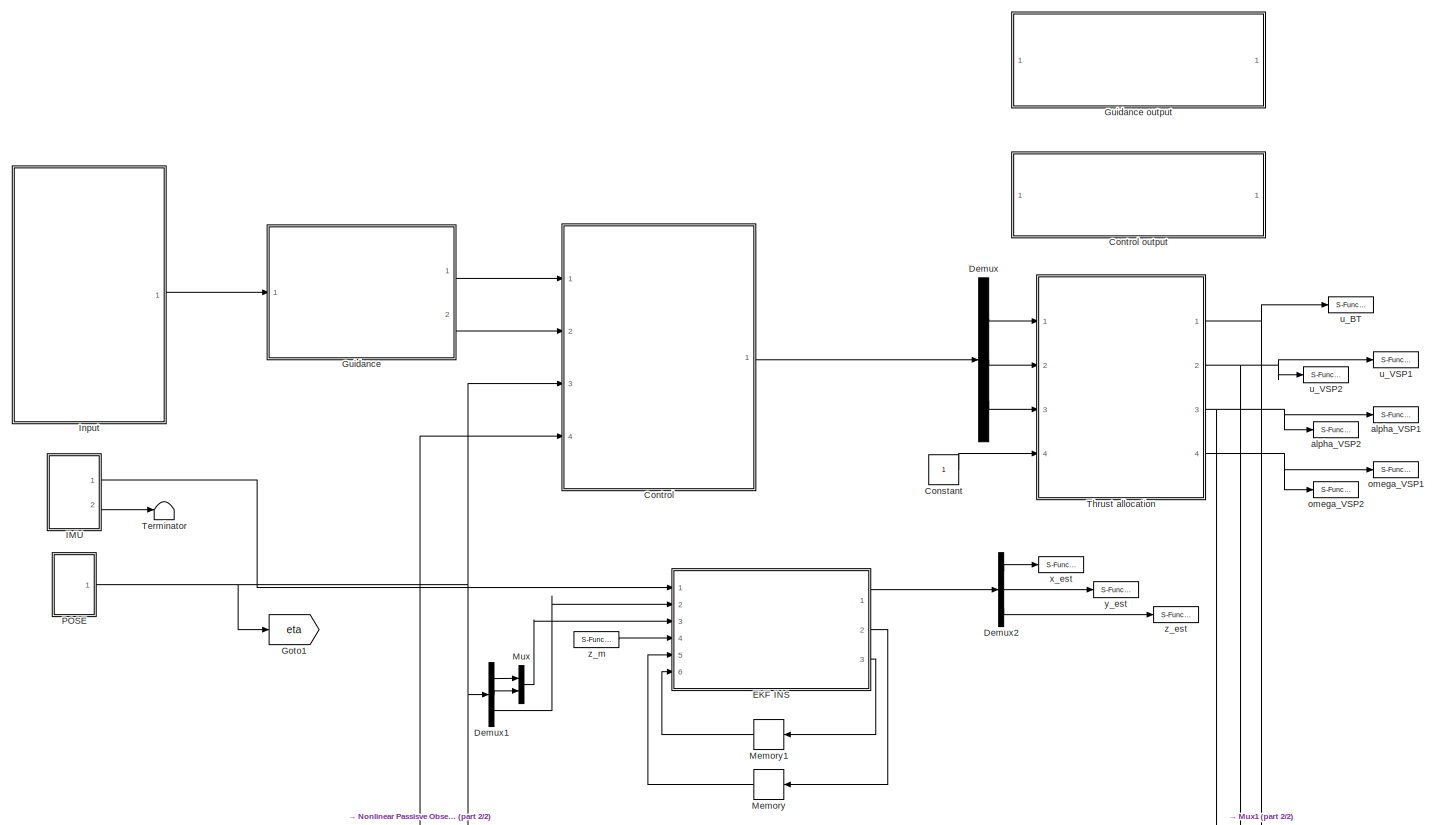
[diagram: root canvas - part 1/2, full width, middle band]
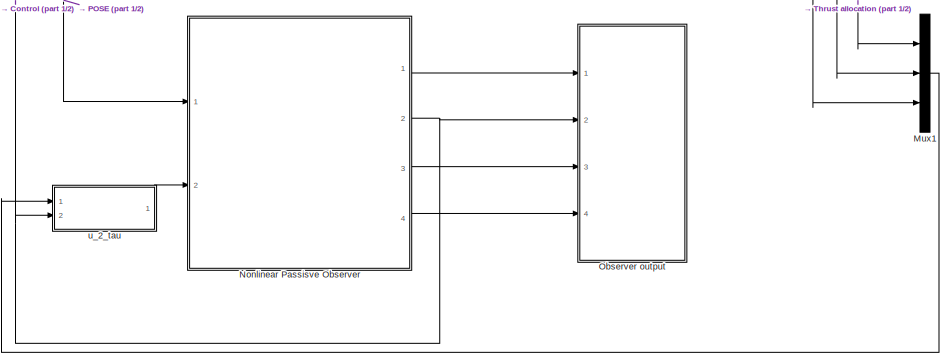
[diagram: root canvas - part 2/2, bottom center region]
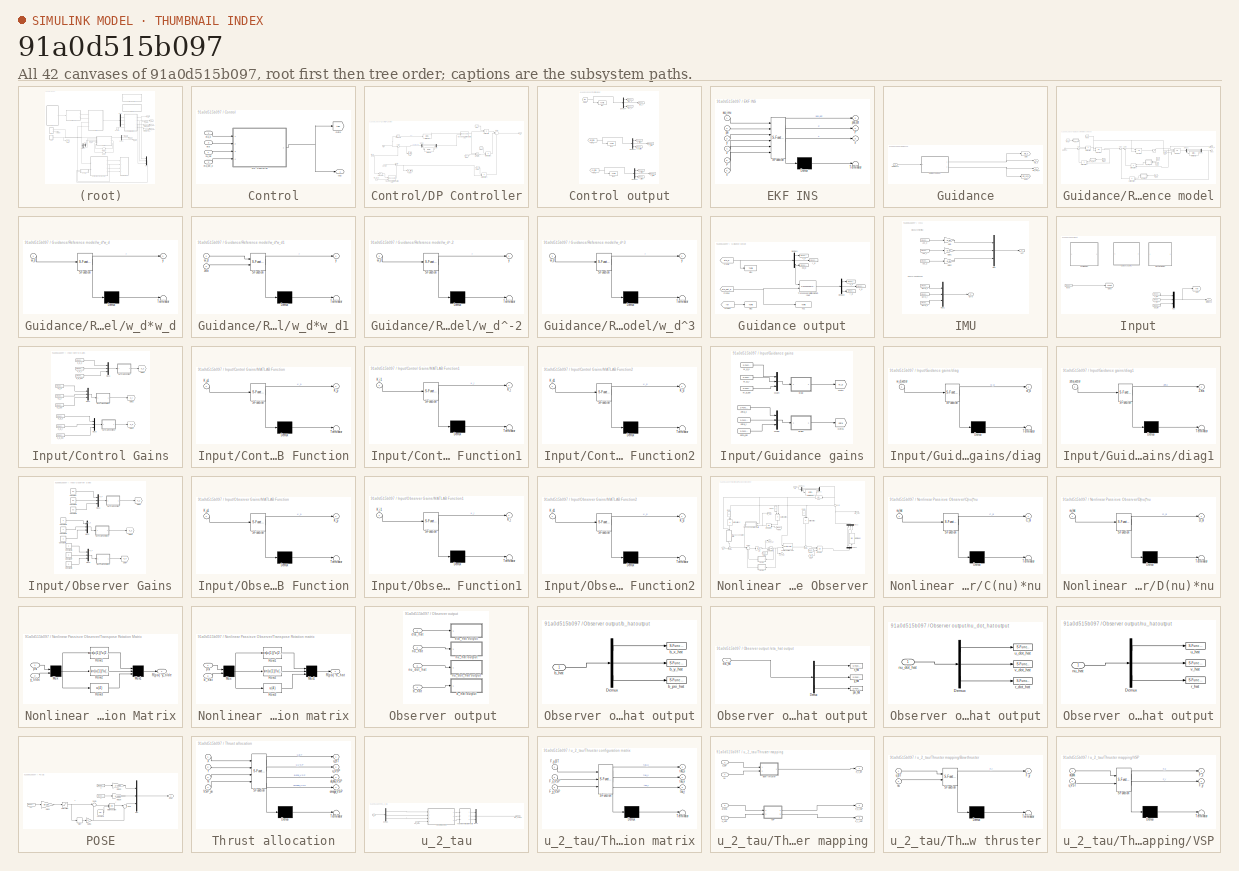
[diagram: thumbnail index - all 42 canvases of the model, root first then tree order]
MODEL slx_91a0d515b097
KIND model
CONFIG AbsTol = auto
CONFIG EnableMultiTasking = on
CONFIG FixedStep = 0.01
CONFIG MaxStep = auto
CONFIG MinStep = auto
CONFIG RelTol = 1e-3
CONFIG SampleTimeConstraint = Unconstrained
CONFIG Solver = ode4
CONFIG SolverName = ode4
CONFIG StartTime = 0.0
CONFIG StopTime = inf
BLOCK [Constant] Constant
BLOCK [SubSystem] Control
  Ports = [4, 1]
  RequestExecContextInheritance = off
  Variant = off
BLOCK [SubSystem] Control output
  Ports = []
  RequestExecContextInheritance = off
  Variant = off
BLOCK [Demux] Control output/Demux1
  DisplayOption = bar
  Outputs = 3
  Ports = [1, 3]
BLOCK [Demux] Control output/Demux2
  DisplayOption = bar
  Outputs = 3
  Ports = [1, 3]
BLOCK [Demux] Control output/Demux4
  DisplayOption = bar
  Outputs = 3
  Ports = [1, 3]
BLOCK [From] Control output/From1
  GotoTag = eta_tilde
  TagVisibility = global
BLOCK [From] Control output/From2
  GotoTag = nu_tilde
  TagVisibility = global
BLOCK [From] Control output/From3
  GotoTag = tau
  TagVisibility = global
BLOCK [S-Function] Control output/psi_tilde
  CopyFcn = NIVeriStand_MDL_functions('', 'IO_copy');
  DeleteFcn = NIVeriStand_MDL_functions('', 'IO_delete');
  EnableBusSupport = off
  FunctionName = NIVeriStandIO
  MoveFcn = set_param(gcb, 'Mask', 'on');
  Parameters = width dtype portnum stime stype btype
  Ports = [1]
  Priority = 4
  SFcnIsStateOwnerBlock = off
  SFunctionDeploymentMode = off
BLOCK [S-Function] Control output/r_tilde
  CopyFcn = NIVeriStand_MDL_functions('', 'IO_copy');
  DeleteFcn = NIVeriStand_MDL_functions('', 'IO_delete');
  EnableBusSupport = off
  FunctionName = NIVeriStandIO
  MoveFcn = set_param(gcb, 'Mask', 'on');
  Parameters = width dtype portnum stime stype btype
  Ports = [1]
  Priority = 7
  SFcnIsStateOwnerBlock = off
  SFunctionDeploymentMode = off
BLOCK [ToFile] Control output/tau
  Commented = on
  Filename = tau.mat
  MatrixName = tau
  Ports = [1]
BLOCK [ToFile] Control output/tau1
  Commented = on
  Filename = eta_tilde.mat
  MatrixName = eta_tidle
  Ports = [1]
BLOCK [ToFile] Control output/tau2
  Commented = on
  Filename = eta_tilde.mat
  MatrixName = eta_tidle
  Ports = [1]
BLOCK [S-Function] Control output/tau_N
  CopyFcn = NIVeriStand_MDL_functions('', 'IO_copy');
  DeleteFcn = NIVeriStand_MDL_functions('', 'IO_delete');
  EnableBusSupport = off
  FunctionName = NIVeriStandIO
  MoveFcn = set_param(gcb, 'Mask', 'on');
  Parameters = width dtype portnum stime stype btype
  Ports = [1]
  Priority = 1
  SFcnIsStateOwnerBlock = off
  SFunctionDeploymentMode = off
BLOCK [S-Function] Control output/tau_X
  CopyFcn = NIVeriStand_MDL_functions('', 'IO_copy');
  DeleteFcn = NIVeriStand_MDL_functions('', 'IO_delete');
  EnableBusSupport = off
  FunctionName = NIVeriStandIO
  MoveFcn = set_param(gcb, 'Mask', 'on');
  Parameters = width dtype portnum stime stype btype
  Ports = [1]
  Priority = 2
  SFcnIsStateOwnerBlock = off
  SFunctionDeploymentMode = off
BLOCK [S-Function] Control output/tau_Y
  CopyFcn = NIVeriStand_MDL_functions('', 'IO_copy');
  DeleteFcn = NIVeriStand_MDL_functions('', 'IO_delete');
  EnableBusSupport = off
  FunctionName = NIVeriStandIO
  MoveFcn = set_param(gcb, 'Mask', 'on');
  Parameters = width dtype portnum stime stype btype
  Ports = [1]
  Priority = 3
  SFcnIsStateOwnerBlock = off
  SFunctionDeploymentMode = off
BLOCK [S-Function] Control output/u_tilde
  CopyFcn = NIVeriStand_MDL_functions('', 'IO_copy');
  DeleteFcn = NIVeriStand_MDL_functions('', 'IO_delete');
  EnableBusSupport = off
  FunctionName = NIVeriStandIO
  MoveFcn = set_param(gcb, 'Mask', 'on');
  Parameters = width dtype portnum stime stype btype
  Ports = [1]
  Priority = 8
  SFcnIsStateOwnerBlock = off
  SFunctionDeploymentMode = off
BLOCK [S-Function] Control output/v_tilde
  CopyFcn = NIVeriStand_MDL_functions('', 'IO_copy');
  DeleteFcn = NIVeriStand_MDL_functions('', 'IO_delete');
  EnableBusSupport = off
  FunctionName = NIVeriStandIO
  MoveFcn = set_param(gcb, 'Mask', 'on');
  Parameters = width dtype portnum stime stype btype
  Ports = [1]
  Priority = 9
  SFcnIsStateOwnerBlock = off
  SFunctionDeploymentMode = off
BLOCK [S-Function] Control output/x_tilde
  CopyFcn = NIVeriStand_MDL_functions('', 'IO_copy');
  DeleteFcn = NIVeriStand_MDL_functions('', 'IO_delete');
  EnableBusSupport = off
  FunctionName = NIVeriStandIO
  MoveFcn = set_param(gcb, 'Mask', 'on');
  Parameters = width dtype portnum stime stype btype
  Ports = [1]
  Priority = 5
  SFcnIsStateOwnerBlock = off
  SFunctionDeploymentMode = off
BLOCK [S-Function] Control output/y_tidle
  CopyFcn = NIVeriStand_MDL_functions('', 'IO_copy');
  DeleteFcn = NIVeriStand_MDL_functions('', 'IO_delete');
  EnableBusSupport = off
  FunctionName = NIVeriStandIO
  MoveFcn = set_param(gcb, 'Mask', 'on');
  Parameters = width dtype portnum stime stype btype
  Ports = [1]
  Priority = 6
  SFcnIsStateOwnerBlock = off
  SFunctionDeploymentMode = off
BLOCK [SubSystem] Control/DP Controller
  Ports = [4, 1]
  RequestExecContextInheritance = off
  Variant = off
BLOCK [Demux] Control/DP Controller/Demux
  DisplayOption = bar
  Outputs = 3
  Ports = [1, 3]
BLOCK [From] Control/DP Controller/From
  GotoTag = K_p
  TagVisibility = global
BLOCK [From] Control/DP Controller/From1
  GotoTag = K_i
  TagVisibility = global
BLOCK [From] Control/DP Controller/From2
  GotoTag = K_d
  TagVisibility = global
BLOCK [From] Control/DP Controller/From3
  GotoTag = reset
  TagVisibility = global
BLOCK [Goto] Control/DP Controller/Goto
  GotoTag = eta_tilde
  TagVisibility = global
BLOCK [Goto] Control/DP Controller/Goto1
  GotoTag = nu_tilde
  TagVisibility = global
BLOCK [Integrator] Control/DP Controller/Integrator
  ExternalReset = either
  Ports = [2, 1]
BLOCK [Product] Control/DP Controller/Matrix Multiply
  InputSameDT = off
  Multiplication = Matrix(*)
  OutDataTypeStr = Inherit: Inherit via internal rule
  Ports = [2, 1]
  RndMeth = Floor
  SaturateOnIntegerOverflow = off
BLOCK [Product] Control/DP Controller/Matrix Multiply1
  InputSameDT = off
  Multiplication = Matrix(*)
  OutDataTypeStr = Inherit: Inherit via internal rule
  Ports = [2, 1]
  RndMeth = Floor
  SaturateOnIntegerOverflow = off
BLOCK [Product] Control/DP Controller/Matrix Multiply2
  InputSameDT = off
  Multiplication = Matrix(*)
  OutDataTypeStr = Inherit: Inherit via internal rule
  Ports = [2, 1]
  RndMeth = Floor
  SaturateOnIntegerOverflow = off
BLOCK [Mux] Control/DP Controller/Mux
  DisplayOption = bar
  Inputs = 3
  Ports = [3, 1]
BLOCK [Sum] Control/DP Controller/Sum2
  IconShape = round
  Inputs = |+-
  Ports = [2, 1]
BLOCK [Sum] Control/DP Controller/Sum3
  IconShape = round
  Inputs = |---
  Ports = [3, 1]
BLOCK [Sum] Control/DP Controller/Sum4
  IconShape = round
  Inputs = |+-
  Ports = [2, 1]
BLOCK [Reference] Control/DP Controller/Transposed rotation matrix in yaw1  REF=marine_gnc/Models/ Kinematics/Transposed rotation  (lib defined in mdl_10d96c221ba8, mdl_45f1105420c6)
 matrix in yaw
  Ports = [2, 1]
  SourceBlock = marine_gnc/Models/ Kinematics/Transposed rotation\n matrix in yaw
BLOCK [Reference] Control/DP Controller/Transposed rotation matrix in yaw2  REF=marine_gnc/Models/ Kinematics/Transposed rotation  (lib defined in mdl_10d96c221ba8, mdl_45f1105420c6)
 matrix in yaw
  Ports = [2, 1]
  SourceBlock = marine_gnc/Models/ Kinematics/Transposed rotation\n matrix in yaw
BLOCK [Reference] Control/DP Controller/[-inf inf] to [-pi pi]  REF=marine_gnc/Utilities/Math Operations/[-inf inf] to [-pi pi]  (lib defined in mdl_10d96c221ba8, mdl_45f1105420c6)
  Ports = [1, 1]
  SourceBlock = marine_gnc/Utilities/Math Operations/[-inf inf] to [-pi pi]
  SourceType = [-inf inf] to [-pi pi]
BLOCK [Reference] Control/DP Controller/[-inf inf] to [-pi pi]1  REF=marine_gnc/Utilities/Math Operations/[-inf inf] to [-pi pi]  (lib defined in mdl_10d96c221ba8, mdl_45f1105420c6)
  Ports = [1, 1]
  SourceBlock = marine_gnc/Utilities/Math Operations/[-inf inf] to [-pi pi]
  SourceType = [-inf inf] to [-pi pi]
BLOCK [Inport] Control/DP Controller/eta
  IconDisplay = Port number
  Port = 2
BLOCK [Inport] Control/DP Controller/eta_d
  IconDisplay = Port number
BLOCK [Inport] Control/DP Controller/eta_dot_d
  IconDisplay = Port number
  Port = 4
BLOCK [Inport] Control/DP Controller/nu_hat
  IconDisplay = Port number
  Port = 3
BLOCK [Outport] Control/DP Controller/tau
  IconDisplay = Port number
  InitialOutput = 0
BLOCK [Fcn] Control/DP Controller/yaw angle
  Expr = u(3)
BLOCK [Fcn] Control/DP Controller/yaw angle1
  Expr = u(3)
BLOCK [Goto] Control/Goto
  GotoTag = tau
  TagVisibility = global
BLOCK [Inport] Control/eta
  IconDisplay = Port number
  Port = 3
BLOCK [Inport] Control/eta_d
  IconDisplay = Port number
BLOCK [Inport] Control/eta_dot_d
  IconDisplay = Port number
  Port = 2
BLOCK [Inport] Control/nu_hat
  IconDisplay = Port number
  Port = 4
BLOCK [Outport] Control/tau
  IconDisplay = Port number
BLOCK [Demux] Demux
  DisplayOption = bar
  Outputs = 3
  Ports = [1, 3]
BLOCK [Demux] Demux1
  DisplayOption = bar
  Outputs = 3
  Ports = [1, 3]
BLOCK [Demux] Demux2
  DisplayOption = bar
  Outputs = 3
  Ports = [1, 3]
BLOCK [SubSystem] EKF INS
  ErrorFcn = Stateflow.Translate.translate
  PermitHierarchicalResolution = ExplicitOnly
  Ports = [6, 3]
  RequestExecContextInheritance = off
  SFBlockType = MATLAB Function
  TreatAsAtomicUnit = on
  Variant = off
BLOCK [Demux] EKF INS/ Demux 
  Outputs = 1
  Ports = [1, 1]
BLOCK [S-Function] EKF INS/ SFunction 
  EnableBusSupport = on
  FunctionName = sf_sfun
  PortCounts = [6 4]
  Ports = [6, 4]
  SFcnIsStateOwnerBlock = off
  SFunctionDeploymentMode = off
  Tag = Stateflow S-Function ctrl_DP 6
BLOCK [Terminator] EKF INS/ Terminator 
BLOCK [Outport] EKF INS/P
  IconDisplay = Port number
  Port = 2
BLOCK [Inport] EKF INS/P 
  IconDisplay = Port number
  Port = 5
BLOCK [Inport] EKF INS/acc_imu
  IconDisplay = Port number
BLOCK [Outport] EKF INS/pos_est
  IconDisplay = Port number
BLOCK [Inport] EKF INS/psi
  IconDisplay = Port number
  Port = 2
BLOCK [Outport] EKF INS/x
  IconDisplay = Port number
  Port = 3
BLOCK [Inport] EKF INS/x 
  IconDisplay = Port number
  Port = 6
BLOCK [Inport] EKF INS/y
  IconDisplay = Port number
  Port = 3
BLOCK [Inport] EKF INS/z
  IconDisplay = Port number
  Port = 4
BLOCK [Goto] Goto1
  GotoTag = eta
  TagVisibility = global
BLOCK [SubSystem] Guidance
  Ports = [1, 2]
  RequestExecContextInheritance = off
  Variant = off
BLOCK [SubSystem] Guidance output
  Ports = []
  RequestExecContextInheritance = off
  Variant = off
BLOCK [Demux] Guidance output/Demux1
  DisplayOption = bar
  Outputs = 3
  Ports = [1, 3]
BLOCK [Demux] Guidance output/Demux2
  DisplayOption = bar
  Outputs = 3
  Ports = [1, 3]
BLOCK [From] Guidance output/From10
  GotoTag = eta_dot_d
  TagVisibility = global
BLOCK [From] Guidance output/From12
  GotoTag = ref
  TagVisibility = global
BLOCK [From] Guidance output/From9
  GotoTag = eta_d
  TagVisibility = global
BLOCK [Reference] Guidance output/Transposed rotation matrix in yaw2  REF=marine_gnc/Models/ Kinematics/Transposed rotation  (lib defined in mdl_10d96c221ba8, mdl_45f1105420c6)
 matrix in yaw
  Ports = [2, 1]
  SourceBlock = marine_gnc/Models/ Kinematics/Transposed rotation\n matrix in yaw
BLOCK [ToFile] Guidance output/eta1
  Commented = on
  Filename = eta_d.mat
  MatrixName = eta_d
  Ports = [1]
BLOCK [ToFile] Guidance output/eta2
  Commented = on
  Filename = ref.mat
  MatrixName = ref
  Ports = [1]
BLOCK [ToFile] Guidance output/nu 1
  Commented = on
  Filename = eta_dot_d.mat
  MatrixName = eta_dot_d
  Ports = [1]
BLOCK [S-Function] Guidance output/psi_d
  CopyFcn = NIVeriStand_MDL_functions('', 'IO_copy');
  DeleteFcn = NIVeriStand_MDL_functions('', 'IO_delete');
  EnableBusSupport = off
  FunctionName = NIVeriStandIO
  MoveFcn = set_param(gcb, 'Mask', 'on');
  Parameters = width dtype portnum stime stype btype
  Ports = [1]
  Priority = 3
  SFcnIsStateOwnerBlock = off
  SFunctionDeploymentMode = off
BLOCK [S-Function] Guidance output/r_d
  CopyFcn = NIVeriStand_MDL_functions('', 'IO_copy');
  DeleteFcn = NIVeriStand_MDL_functions('', 'IO_delete');
  EnableBusSupport = off
  FunctionName = NIVeriStandIO
  MoveFcn = set_param(gcb, 'Mask', 'on');
  Parameters = width dtype portnum stime stype btype
  Ports = [1]
  Priority = 4
  SFcnIsStateOwnerBlock = off
  SFunctionDeploymentMode = off
BLOCK [S-Function] Guidance output/u_d
  CopyFcn = NIVeriStand_MDL_functions('', 'IO_copy');
  DeleteFcn = NIVeriStand_MDL_functions('', 'IO_delete');
  EnableBusSupport = off
  FunctionName = NIVeriStandIO
  MoveFcn = set_param(gcb, 'Mask', 'on');
  Parameters = width dtype portnum stime stype btype
  Ports = [1]
  Priority = 5
  SFcnIsStateOwnerBlock = off
  SFunctionDeploymentMode = off
BLOCK [S-Function] Guidance output/v_d
  CopyFcn = NIVeriStand_MDL_functions('', 'IO_copy');
  DeleteFcn = NIVeriStand_MDL_functions('', 'IO_delete');
  EnableBusSupport = off
  FunctionName = NIVeriStandIO
  MoveFcn = set_param(gcb, 'Mask', 'on');
  Parameters = width dtype portnum stime stype btype
  Ports = [1]
  Priority = 6
  SFcnIsStateOwnerBlock = off
  SFunctionDeploymentMode = off
BLOCK [S-Function] Guidance output/x_d
  CopyFcn = NIVeriStand_MDL_functions('', 'IO_copy');
  DeleteFcn = NIVeriStand_MDL_functions('', 'IO_delete');
  EnableBusSupport = off
  FunctionName = NIVeriStandIO
  MoveFcn = set_param(gcb, 'Mask', 'on');
  Parameters = width dtype portnum stime stype btype
  Ports = [1]
  Priority = 1
  SFcnIsStateOwnerBlock = off
  SFunctionDeploymentMode = off
BLOCK [S-Function] Guidance output/y_d
  CopyFcn = NIVeriStand_MDL_functions('', 'IO_copy');
  DeleteFcn = NIVeriStand_MDL_functions('', 'IO_delete');
  EnableBusSupport = off
  FunctionName = NIVeriStandIO
  MoveFcn = set_param(gcb, 'Mask', 'on');
  Parameters = width dtype portnum stime stype btype
  Ports = [1]
  Priority = 2
  SFcnIsStateOwnerBlock = off
  SFunctionDeploymentMode = off
BLOCK [Goto] Guidance/Goto
  GotoTag = eta_d
  TagVisibility = global
BLOCK [Goto] Guidance/Goto1
  GotoTag = eta_dot_d
  TagVisibility = global
BLOCK [Inport] Guidance/Reference 
  IconDisplay = Port number
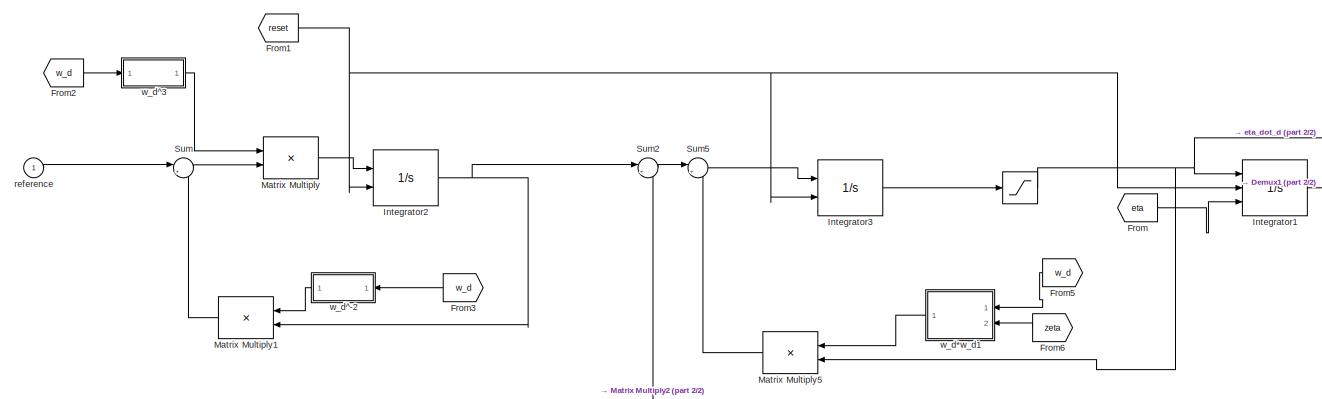
[diagram: Guidance/Reference model - part 1/2, full width, middle band]
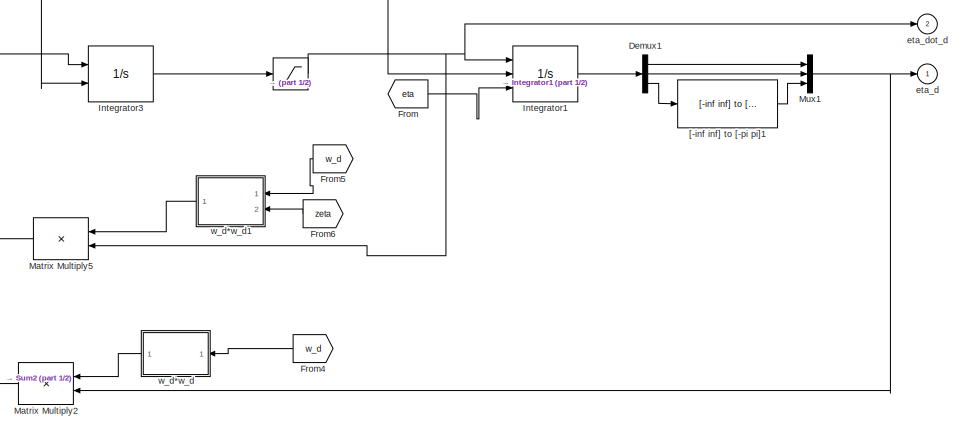
[diagram: Guidance/Reference model - part 2/2, right side, full height]
BLOCK [SubSystem] Guidance/Reference model
  Ports = [1, 2]
  RequestExecContextInheritance = off
  Variant = off
BLOCK [Saturate] Guidance/Reference model/       
  Commented = through
  InputPortMap = u0
  LowerLimit = -[0.3 0.1 1]
  Ports = [1, 1]
  UpperLimit = [0.3 0.1 1]
BLOCK [Demux] Guidance/Reference model/Demux1
  DisplayOption = bar
  Outputs = 3
  Ports = [1, 3]
BLOCK [From] Guidance/Reference model/From
  GotoTag = eta
  TagVisibility = global
BLOCK [From] Guidance/Reference model/From1
  GotoTag = reset
  TagVisibility = global
BLOCK [From] Guidance/Reference model/From2
  GotoTag = w_d
  TagVisibility = global
BLOCK [From] Guidance/Reference model/From3
  GotoTag = w_d
  TagVisibility = global
BLOCK [From] Guidance/Reference model/From4
  GotoTag = w_d
  TagVisibility = global
BLOCK [From] Guidance/Reference model/From5
  GotoTag = w_d
  TagVisibility = global
BLOCK [From] Guidance/Reference model/From6
  GotoTag = zeta
  TagVisibility = global
BLOCK [Integrator] Guidance/Reference model/Integrator1
  ExternalReset = either
  InitialConditionSource = external
  Ports = [3, 1]
BLOCK [Integrator] Guidance/Reference model/Integrator2
  ExternalReset = either
  Ports = [2, 1]
BLOCK [Integrator] Guidance/Reference model/Integrator3
  ExternalReset = either
  Ports = [2, 1]
BLOCK [Product] Guidance/Reference model/Matrix Multiply
  InputSameDT = off
  Multiplication = Matrix(*)
  OutDataTypeStr = Inherit: Inherit via internal rule
  Ports = [2, 1]
  RndMeth = Floor
  SaturateOnIntegerOverflow = off
BLOCK [Product] Guidance/Reference model/Matrix Multiply1
  InputSameDT = off
  Multiplication = Matrix(*)
  OutDataTypeStr = Inherit: Inherit via internal rule
  Ports = [2, 1]
  RndMeth = Floor
  SaturateOnIntegerOverflow = off
BLOCK [Product] Guidance/Reference model/Matrix Multiply2
  InputSameDT = off
  Multiplication = Matrix(*)
  OutDataTypeStr = Inherit: Inherit via internal rule
  Ports = [2, 1]
  RndMeth = Floor
  SaturateOnIntegerOverflow = off
BLOCK [Product] Guidance/Reference model/Matrix Multiply5
  InputSameDT = off
  Multiplication = Matrix(*)
  OutDataTypeStr = Inherit: Inherit via internal rule
  Ports = [2, 1]
  RndMeth = Floor
  SaturateOnIntegerOverflow = off
BLOCK [Mux] Guidance/Reference model/Mux1
  DisplayOption = bar
  Inputs = 3
  Ports = [3, 1]
BLOCK [Sum] Guidance/Reference model/Sum
  IconShape = round
  InputSameDT = off
  Inputs = |+-
  OutDataTypeStr = Inherit: Inherit via internal rule
  Ports = [2, 1]
  SaturateOnIntegerOverflow = off
BLOCK [Sum] Guidance/Reference model/Sum2
  IconShape = round
  Inputs = |+-
  Ports = [2, 1]
BLOCK [Sum] Guidance/Reference model/Sum5
  IconShape = round
  Inputs = |+-
  Ports = [2, 1]
BLOCK [Reference] Guidance/Reference model/[-inf inf] to [-pi pi]1  REF=marine_gnc/Utilities/Math Operations/[-inf inf] to [-pi pi]  (lib defined in mdl_10d96c221ba8, mdl_45f1105420c6)
  Ports = [1, 1]
  SourceBlock = marine_gnc/Utilities/Math Operations/[-inf inf] to [-pi pi]
  SourceType = [-inf inf] to [-pi pi]
BLOCK [Outport] Guidance/Reference model/eta_d
  IconDisplay = Port number
  InitialOutput = 0
BLOCK [Outport] Guidance/Reference model/eta_dot_d
  IconDisplay = Port number
  InitialOutput = 0
  Port = 2
BLOCK [Inport] Guidance/Reference model/reference
  IconDisplay = Port number
BLOCK [SubSystem] Guidance/Reference model/w_d*w_d
  ErrorFcn = Stateflow.Translate.translate
  PermitHierarchicalResolution = ExplicitOnly
  Ports = [1, 1]
  RequestExecContextInheritance = off
  SFBlockType = MATLAB Function
  TreatAsAtomicUnit = on
  Variant = off
BLOCK [Demux] Guidance/Reference model/w_d*w_d/ Demux 
  Outputs = 1
  Ports = [1, 1]
BLOCK [S-Function] Guidance/Reference model/w_d*w_d/ SFunction 
  EnableBusSupport = on
  FunctionName = sf_sfun
  PortCounts = [1 2]
  Ports = [1, 2]
  SFcnIsStateOwnerBlock = off
  SFunctionDeploymentMode = off
  Tag = Stateflow S-Function ctrl_DP 3
BLOCK [Terminator] Guidance/Reference model/w_d*w_d/ Terminator 
BLOCK [Inport] Guidance/Reference model/w_d*w_d/w_d
  IconDisplay = Port number
BLOCK [Outport] Guidance/Reference model/w_d*w_d/y
  IconDisplay = Port number
BLOCK [SubSystem] Guidance/Reference model/w_d*w_d1
  ErrorFcn = Stateflow.Translate.translate
  PermitHierarchicalResolution = ExplicitOnly
  Ports = [2, 1]
  RequestExecContextInheritance = off
  SFBlockType = MATLAB Function
  TreatAsAtomicUnit = on
  Variant = off
BLOCK [Demux] Guidance/Reference model/w_d*w_d1/ Demux 
  Outputs = 1
  Ports = [1, 1]
BLOCK [S-Function] Guidance/Reference model/w_d*w_d1/ SFunction 
  EnableBusSupport = on
  FunctionName = sf_sfun
  PortCounts = [2 2]
  Ports = [2, 2]
  SFcnIsStateOwnerBlock = off
  SFunctionDeploymentMode = off
  Tag = Stateflow S-Function ctrl_DP 4
BLOCK [Terminator] Guidance/Reference model/w_d*w_d1/ Terminator 
BLOCK [Inport] Guidance/Reference model/w_d*w_d1/w_d
  IconDisplay = Port number
BLOCK [Outport] Guidance/Reference model/w_d*w_d1/y
  IconDisplay = Port number
BLOCK [Inport] Guidance/Reference model/w_d*w_d1/zeta
  IconDisplay = Port number
  Port = 2
BLOCK [SubSystem] Guidance/Reference model/w_d^-2
  ErrorFcn = Stateflow.Translate.translate
  PermitHierarchicalResolution = ExplicitOnly
  Ports = [1, 1]
  RequestExecContextInheritance = off
  SFBlockType = MATLAB Function
  TreatAsAtomicUnit = on
  Variant = off
BLOCK [Demux] Guidance/Reference model/w_d^-2/ Demux 
  Outputs = 1
  Ports = [1, 1]
BLOCK [S-Function] Guidance/Reference model/w_d^-2/ SFunction 
  EnableBusSupport = on
  FunctionName = sf_sfun
  PortCounts = [1 2]
  Ports = [1, 2]
  SFcnIsStateOwnerBlock = off
  SFunctionDeploymentMode = off
  Tag = Stateflow S-Function ctrl_DP 2
BLOCK [Terminator] Guidance/Reference model/w_d^-2/ Terminator 
BLOCK [Inport] Guidance/Reference model/w_d^-2/w_d
  IconDisplay = Port number
BLOCK [Outport] Guidance/Reference model/w_d^-2/y
  IconDisplay = Port number
BLOCK [SubSystem] Guidance/Reference model/w_d^3
  ErrorFcn = Stateflow.Translate.translate
  PermitHierarchicalResolution = ExplicitOnly
  Ports = [1, 1]
  RequestExecContextInheritance = off
  SFBlockType = MATLAB Function
  TreatAsAtomicUnit = on
  Variant = off
BLOCK [Demux] Guidance/Reference model/w_d^3/ Demux 
  Outputs = 1
  Ports = [1, 1]
BLOCK [S-Function] Guidance/Reference model/w_d^3/ SFunction 
  EnableBusSupport = on
  FunctionName = sf_sfun
  PortCounts = [1 2]
  Ports = [1, 2]
  SFcnIsStateOwnerBlock = off
  SFunctionDeploymentMode = off
  Tag = Stateflow S-Function ctrl_DP 5
BLOCK [Terminator] Guidance/Reference model/w_d^3/ Terminator 
BLOCK [Inport] Guidance/Reference model/w_d^3/w_d
  IconDisplay = Port number
BLOCK [Outport] Guidance/Reference model/w_d^3/y
  IconDisplay = Port number
BLOCK [Outport] Guidance/eta_d
  IconDisplay = Port number
BLOCK [Outport] Guidance/eta_dot_d
  IconDisplay = Port number
  Port = 2
BLOCK [SubSystem] IMU
  Ports = [0, 2]
  RequestExecContextInheritance = off
  Variant = off
BLOCK [Outport] IMU/Acc
  IconDisplay = Port number
BLOCK [S-Function] IMU/Acc_x
  CopyFcn = NIVeriStand_MDL_functions('', 'IO_copy');
  DeleteFcn = NIVeriStand_MDL_functions('', 'IO_delete');
  EnableBusSupport = off
  FunctionName = NIVeriStandIO
  MoveFcn = set_param(gcb, 'Mask', 'on');
  Parameters = width dtype portnum stime stype btype
  Ports = [0, 1]
  Priority = 1
  SFcnIsStateOwnerBlock = off
  SFunctionDeploymentMode = off
BLOCK [S-Function] IMU/Acc_y
  CopyFcn = NIVeriStand_MDL_functions('', 'IO_copy');
  DeleteFcn = NIVeriStand_MDL_functions('', 'IO_delete');
  EnableBusSupport = off
  FunctionName = NIVeriStandIO
  MoveFcn = set_param(gcb, 'Mask', 'on');
  Parameters = width dtype portnum stime stype btype
  Ports = [0, 1]
  Priority = 2
  SFcnIsStateOwnerBlock = off
  SFunctionDeploymentMode = off
BLOCK [S-Function] IMU/Acc_z
  CopyFcn = NIVeriStand_MDL_functions('', 'IO_copy');
  DeleteFcn = NIVeriStand_MDL_functions('', 'IO_delete');
  EnableBusSupport = off
  FunctionName = NIVeriStandIO
  MoveFcn = set_param(gcb, 'Mask', 'on');
  Parameters = width dtype portnum stime stype btype
  Ports = [0, 1]
  Priority = 3
  SFcnIsStateOwnerBlock = off
  SFunctionDeploymentMode = off
BLOCK [Gain] IMU/Gain
  Gain = -9.81
  OutDataTypeStr = Inherit: Inherit via internal rule
  ParamDataTypeStr = Inherit: Inherit via internal rule
  SaturateOnIntegerOverflow = off
BLOCK [Gain] IMU/Gain1
  Gain = -9.81
  OutDataTypeStr = Inherit: Inherit via internal rule
  ParamDataTypeStr = Inherit: Inherit via internal rule
  SaturateOnIntegerOverflow = off
BLOCK [Gain] IMU/Gain2
  Gain = -9.81
  OutDataTypeStr = Inherit: Inherit via internal rule
  ParamDataTypeStr = Inherit: Inherit via internal rule
  SaturateOnIntegerOverflow = off
BLOCK [Outport] IMU/Gyro
  IconDisplay = Port number
  Port = 2
BLOCK [S-Function] IMU/Gyro_x
  CopyFcn = NIVeriStand_MDL_functions('', 'IO_copy');
  DeleteFcn = NIVeriStand_MDL_functions('', 'IO_delete');
  EnableBusSupport = off
  FunctionName = NIVeriStandIO
  MoveFcn = set_param(gcb, 'Mask', 'on');
  Parameters = width dtype portnum stime stype btype
  Ports = [0, 1]
  Priority = 4
  SFcnIsStateOwnerBlock = off
  SFunctionDeploymentMode = off
BLOCK [S-Function] IMU/Gyro_y
  CopyFcn = NIVeriStand_MDL_functions('', 'IO_copy');
  DeleteFcn = NIVeriStand_MDL_functions('', 'IO_delete');
  EnableBusSupport = off
  FunctionName = NIVeriStandIO
  MoveFcn = set_param(gcb, 'Mask', 'on');
  Parameters = width dtype portnum stime stype btype
  Ports = [0, 1]
  Priority = 5
  SFcnIsStateOwnerBlock = off
  SFunctionDeploymentMode = off
BLOCK [S-Function] IMU/Gyro_z
  CopyFcn = NIVeriStand_MDL_functions('', 'IO_copy');
  DeleteFcn = NIVeriStand_MDL_functions('', 'IO_delete');
  EnableBusSupport = off
  FunctionName = NIVeriStandIO
  MoveFcn = set_param(gcb, 'Mask', 'on');
  Parameters = width dtype portnum stime stype btype
  Ports = [0, 1]
  Priority = 6
  SFcnIsStateOwnerBlock = off
  SFunctionDeploymentMode = off
BLOCK [Mux] IMU/Mux
  DisplayOption = bar
  Inputs = 3
  Ports = [3, 1]
BLOCK [Mux] IMU/Mux1
  DisplayOption = bar
  Inputs = 3
  Ports = [3, 1]
BLOCK [SubSystem] Input
  Ports = [0, 1]
  RequestExecContextInheritance = off
  Variant = off
BLOCK [SubSystem] Input/Control Gains
  Ports = []
  RequestExecContextInheritance = off
  Variant = off
BLOCK [Goto] Input/Control Gains/Goto2
  GotoTag = K_p
  TagVisibility = global
BLOCK [Goto] Input/Control Gains/Goto3
  GotoTag = K_i
  TagVisibility = global
BLOCK [Goto] Input/Control Gains/Goto4
  GotoTag = K_d
  TagVisibility = global
BLOCK [S-Function] Input/Control Gains/K_d_psi
  CopyFcn = NIVeriStand_MDL_functions('', 'IO_copy');
  DeleteFcn = NIVeriStand_MDL_functions('', 'IO_delete');
  EnableBusSupport = off
  FunctionName = NIVeriStandIO
  MoveFcn = set_param(gcb, 'Mask', 'on');
  Parameters = width dtype portnum stime stype btype
  Ports = [0, 1]
  Priority = 7
  SFcnIsStateOwnerBlock = off
  SFunctionDeploymentMode = off
BLOCK [S-Function] Input/Control Gains/K_d_x
  CopyFcn = NIVeriStand_MDL_functions('', 'IO_copy');
  DeleteFcn = NIVeriStand_MDL_functions('', 'IO_delete');
  EnableBusSupport = off
  FunctionName = NIVeriStandIO
  MoveFcn = set_param(gcb, 'Mask', 'on');
  Parameters = width dtype portnum stime stype btype
  Ports = [0, 1]
  Priority = 8
  SFcnIsStateOwnerBlock = off
  SFunctionDeploymentMode = off
BLOCK [S-Function] Input/Control Gains/K_d_y
  CopyFcn = NIVeriStand_MDL_functions('', 'IO_copy');
  DeleteFcn = NIVeriStand_MDL_functions('', 'IO_delete');
  EnableBusSupport = off
  FunctionName = NIVeriStandIO
  MoveFcn = set_param(gcb, 'Mask', 'on');
  Parameters = width dtype portnum stime stype btype
  Ports = [0, 1]
  Priority = 9
  SFcnIsStateOwnerBlock = off
  SFunctionDeploymentMode = off
BLOCK [S-Function] Input/Control Gains/K_i_psi
  CopyFcn = NIVeriStand_MDL_functions('', 'IO_copy');
  DeleteFcn = NIVeriStand_MDL_functions('', 'IO_delete');
  EnableBusSupport = off
  FunctionName = NIVeriStandIO
  MoveFcn = set_param(gcb, 'Mask', 'on');
  Parameters = width dtype portnum stime stype btype
  Ports = [0, 1]
  Priority = 4
  SFcnIsStateOwnerBlock = off
  SFunctionDeploymentMode = off
BLOCK [S-Function] Input/Control Gains/K_i_x
  CopyFcn = NIVeriStand_MDL_functions('', 'IO_copy');
  DeleteFcn = NIVeriStand_MDL_functions('', 'IO_delete');
  EnableBusSupport = off
  FunctionName = NIVeriStandIO
  MoveFcn = set_param(gcb, 'Mask', 'on');
  Parameters = width dtype portnum stime stype btype
  Ports = [0, 1]
  Priority = 5
  SFcnIsStateOwnerBlock = off
  SFunctionDeploymentMode = off
BLOCK [S-Function] Input/Control Gains/K_i_y
  CopyFcn = NIVeriStand_MDL_functions('', 'IO_copy');
  DeleteFcn = NIVeriStand_MDL_functions('', 'IO_delete');
  EnableBusSupport = off
  FunctionName = NIVeriStandIO
  MoveFcn = set_param(gcb, 'Mask', 'on');
  Parameters = width dtype portnum stime stype btype
  Ports = [0, 1]
  Priority = 6
  SFcnIsStateOwnerBlock = off
  SFunctionDeploymentMode = off
BLOCK [S-Function] Input/Control Gains/K_p_psi
  CopyFcn = NIVeriStand_MDL_functions('', 'IO_copy');
  DeleteFcn = NIVeriStand_MDL_functions('', 'IO_delete');
  EnableBusSupport = off
  FunctionName = NIVeriStandIO
  MoveFcn = set_param(gcb, 'Mask', 'on');
  Parameters = width dtype portnum stime stype btype
  Ports = [0, 1]
  Priority = 3
  SFcnIsStateOwnerBlock = off
  SFunctionDeploymentMode = off
BLOCK [S-Function] Input/Control Gains/K_p_x
  CopyFcn = NIVeriStand_MDL_functions('', 'IO_copy');
  DeleteFcn = NIVeriStand_MDL_functions('', 'IO_delete');
  EnableBusSupport = off
  FunctionName = NIVeriStandIO
  MoveFcn = set_param(gcb, 'Mask', 'on');
  Parameters = width dtype portnum stime stype btype
  Ports = [0, 1]
  Priority = 1
  SFcnIsStateOwnerBlock = off
  SFunctionDeploymentMode = off
BLOCK [S-Function] Input/Control Gains/K_p_y
  CopyFcn = NIVeriStand_MDL_functions('', 'IO_copy');
  DeleteFcn = NIVeriStand_MDL_functions('', 'IO_delete');
  EnableBusSupport = off
  FunctionName = NIVeriStandIO
  MoveFcn = set_param(gcb, 'Mask', 'on');
  Parameters = width dtype portnum stime stype btype
  Ports = [0, 1]
  Priority = 2
  SFcnIsStateOwnerBlock = off
  SFunctionDeploymentMode = off
BLOCK [SubSystem] Input/Control Gains/MATLAB Function
  ErrorFcn = Stateflow.Translate.translate
  PermitHierarchicalResolution = ExplicitOnly
  Ports = [1, 1]
  RequestExecContextInheritance = off
  SFBlockType = MATLAB Function
  TreatAsAtomicUnit = on
  Variant = off
BLOCK [Demux] Input/Control Gains/MATLAB Function/ Demux 
  Outputs = 1
  Ports = [1, 1]
BLOCK [S-Function] Input/Control Gains/MATLAB Function/ SFunction 
  EnableBusSupport = on
  FunctionName = sf_sfun
  PortCounts = [1 2]
  Ports = [1, 2]
  SFcnIsStateOwnerBlock = off
  SFunctionDeploymentMode = off
  Tag = Stateflow S-Function ctrl_DP 16
BLOCK [Terminator] Input/Control Gains/MATLAB Function/ Terminator 
BLOCK [Outport] Input/Control Gains/MATLAB Function/K_p
  IconDisplay = Port number
BLOCK [Inport] Input/Control Gains/MATLAB Function/K_p1
  IconDisplay = Port number
BLOCK [SubSystem] Input/Control Gains/MATLAB Function1
  ErrorFcn = Stateflow.Translate.translate
  PermitHierarchicalResolution = ExplicitOnly
  Ports = [1, 1]
  RequestExecContextInheritance = off
  SFBlockType = MATLAB Function
  TreatAsAtomicUnit = on
  Variant = off
BLOCK [Demux] Input/Control Gains/MATLAB Function1/ Demux 
  Outputs = 1
  Ports = [1, 1]
BLOCK [S-Function] Input/Control Gains/MATLAB Function1/ SFunction 
  EnableBusSupport = on
  FunctionName = sf_sfun
  PortCounts = [1 2]
  Ports = [1, 2]
  SFcnIsStateOwnerBlock = off
  SFunctionDeploymentMode = off
  Tag = Stateflow S-Function ctrl_DP 17
BLOCK [Terminator] Input/Control Gains/MATLAB Function1/ Terminator 
BLOCK [Outport] Input/Control Gains/MATLAB Function1/K_i
  IconDisplay = Port number
BLOCK [Inport] Input/Control Gains/MATLAB Function1/K_i1
  IconDisplay = Port number
BLOCK [SubSystem] Input/Control Gains/MATLAB Function2
  ErrorFcn = Stateflow.Translate.translate
  PermitHierarchicalResolution = ExplicitOnly
  Ports = [1, 1]
  RequestExecContextInheritance = off
  SFBlockType = MATLAB Function
  TreatAsAtomicUnit = on
  Variant = off
BLOCK [Demux] Input/Control Gains/MATLAB Function2/ Demux 
  Outputs = 1
  Ports = [1, 1]
BLOCK [S-Function] Input/Control Gains/MATLAB Function2/ SFunction 
  EnableBusSupport = on
  FunctionName = sf_sfun
  PortCounts = [1 2]
  Ports = [1, 2]
  SFcnIsStateOwnerBlock = off
  SFunctionDeploymentMode = off
  Tag = Stateflow S-Function ctrl_DP 18
BLOCK [Terminator] Input/Control Gains/MATLAB Function2/ Terminator 
BLOCK [Outport] Input/Control Gains/MATLAB Function2/K_d
  IconDisplay = Port number
BLOCK [Inport] Input/Control Gains/MATLAB Function2/K_d1
  IconDisplay = Port number
BLOCK [Mux] Input/Control Gains/Mux1
  DisplayOption = bar
  Inputs = 3
  Ports = [3, 1]
BLOCK [Mux] Input/Control Gains/Mux2
  DisplayOption = bar
  Inputs = 3
  Ports = [3, 1]
BLOCK [Mux] Input/Control Gains/Mux3
  DisplayOption = bar
  Inputs = 3
  Ports = [3, 1]
BLOCK [Goto] Input/Goto
  GotoTag = ref
  TagVisibility = global
BLOCK [Goto] Input/Goto3
  GotoTag = reset
  TagVisibility = global
BLOCK [SubSystem] Input/Guidance gains
  Ports = []
  RequestExecContextInheritance = off
  Variant = off
BLOCK [Goto] Input/Guidance gains/Goto
  GotoTag = w_d
  TagVisibility = global
BLOCK [Goto] Input/Guidance gains/Goto1
  GotoTag = zeta
  TagVisibility = global
BLOCK [Mux] Input/Guidance gains/Mux4
  DisplayOption = bar
  Inputs = 3
  Ports = [3, 1]
BLOCK [Mux] Input/Guidance gains/Mux5
  DisplayOption = bar
  Inputs = 3
  Ports = [3, 1]
BLOCK [SubSystem] Input/Guidance gains/diag
  ErrorFcn = Stateflow.Translate.translate
  PermitHierarchicalResolution = ExplicitOnly
  Ports = [1, 1]
  RequestExecContextInheritance = off
  SFBlockType = MATLAB Function
  TreatAsAtomicUnit = on
  Variant = off
BLOCK [Demux] Input/Guidance gains/diag/ Demux 
  Outputs = 1
  Ports = [1, 1]
BLOCK [S-Function] Input/Guidance gains/diag/ SFunction 
  EnableBusSupport = on
  FunctionName = sf_sfun
  PortCounts = [1 2]
  Ports = [1, 2]
  SFcnIsStateOwnerBlock = off
  SFunctionDeploymentMode = off
  Tag = Stateflow S-Function ctrl_DP 24
BLOCK [Terminator] Input/Guidance gains/diag/ Terminator 
BLOCK [Outport] Input/Guidance gains/diag/w_d
  IconDisplay = Port number
BLOCK [Inport] Input/Guidance gains/diag/w_d_vector
  IconDisplay = Port number
BLOCK [SubSystem] Input/Guidance gains/diag1
  ErrorFcn = Stateflow.Translate.translate
  PermitHierarchicalResolution = ExplicitOnly
  Ports = [1, 1]
  RequestExecContextInheritance = off
  SFBlockType = MATLAB Function
  TreatAsAtomicUnit = on
  Variant = off
BLOCK [Demux] Input/Guidance gains/diag1/ Demux 
  Outputs = 1
  Ports = [1, 1]
BLOCK [S-Function] Input/Guidance gains/diag1/ SFunction 
  EnableBusSupport = on
  FunctionName = sf_sfun
  PortCounts = [1 2]
  Ports = [1, 2]
  SFcnIsStateOwnerBlock = off
  SFunctionDeploymentMode = off
  Tag = Stateflow S-Function ctrl_DP 25
BLOCK [Terminator] Input/Guidance gains/diag1/ Terminator 
BLOCK [Outport] Input/Guidance gains/diag1/Zeta
  IconDisplay = Port number
BLOCK [Inport] Input/Guidance gains/diag1/zeta_vector
  IconDisplay = Port number
BLOCK [S-Function] Input/Guidance gains/w_d_psi
  CopyFcn = NIVeriStand_MDL_functions('', 'IO_copy');
  DeleteFcn = NIVeriStand_MDL_functions('', 'IO_delete');
  EnableBusSupport = off
  FunctionName = NIVeriStandIO
  MoveFcn = set_param(gcb, 'Mask', 'on');
  Parameters = width dtype portnum stime stype btype
  Ports = [0, 1]
  Priority = 3
  SFcnIsStateOwnerBlock = off
  SFunctionDeploymentMode = off
BLOCK [S-Function] Input/Guidance gains/w_d_x
  CopyFcn = NIVeriStand_MDL_functions('', 'IO_copy');
  DeleteFcn = NIVeriStand_MDL_functions('', 'IO_delete');
  EnableBusSupport = off
  FunctionName = NIVeriStandIO
  MoveFcn = set_param(gcb, 'Mask', 'on');
  Parameters = width dtype portnum stime stype btype
  Ports = [0, 1]
  Priority = 1
  SFcnIsStateOwnerBlock = off
  SFunctionDeploymentMode = off
BLOCK [S-Function] Input/Guidance gains/w_d_y
  CopyFcn = NIVeriStand_MDL_functions('', 'IO_copy');
  DeleteFcn = NIVeriStand_MDL_functions('', 'IO_delete');
  EnableBusSupport = off
  FunctionName = NIVeriStandIO
  MoveFcn = set_param(gcb, 'Mask', 'on');
  Parameters = width dtype portnum stime stype btype
  Ports = [0, 1]
  Priority = 2
  SFcnIsStateOwnerBlock = off
  SFunctionDeploymentMode = off
BLOCK [S-Function] Input/Guidance gains/zeta_psi
  CopyFcn = NIVeriStand_MDL_functions('', 'IO_copy');
  DeleteFcn = NIVeriStand_MDL_functions('', 'IO_delete');
  EnableBusSupport = off
  FunctionName = NIVeriStandIO
  MoveFcn = set_param(gcb, 'Mask', 'on');
  Parameters = width dtype portnum stime stype btype
  Ports = [0, 1]
  Priority = 4
  SFcnIsStateOwnerBlock = off
  SFunctionDeploymentMode = off
BLOCK [S-Function] Input/Guidance gains/zeta_x
  CopyFcn = NIVeriStand_MDL_functions('', 'IO_copy');
  DeleteFcn = NIVeriStand_MDL_functions('', 'IO_delete');
  EnableBusSupport = off
  FunctionName = NIVeriStandIO
  MoveFcn = set_param(gcb, 'Mask', 'on');
  Parameters = width dtype portnum stime stype btype
  Ports = [0, 1]
  Priority = 5
  SFcnIsStateOwnerBlock = off
  SFunctionDeploymentMode = off
BLOCK [S-Function] Input/Guidance gains/zeta_y
  CopyFcn = NIVeriStand_MDL_functions('', 'IO_copy');
  DeleteFcn = NIVeriStand_MDL_functions('', 'IO_delete');
  EnableBusSupport = off
  FunctionName = NIVeriStandIO
  MoveFcn = set_param(gcb, 'Mask', 'on');
  Parameters = width dtype portnum stime stype btype
  Ports = [0, 1]
  Priority = 6
  SFcnIsStateOwnerBlock = off
  SFunctionDeploymentMode = off
BLOCK [Mux] Input/Mux
  DisplayOption = bar
  Inputs = 3
  Ports = [3, 1]
BLOCK [SubSystem] Input/Observer Gains
  Ports = []
  RequestExecContextInheritance = off
  Variant = off
BLOCK [Constant] Input/Observer Gains/Constant
  Value = 50
BLOCK [Constant] Input/Observer Gains/Constant1
  Value = 50
BLOCK [Constant] Input/Observer Gains/Constant2
  Value = 50
BLOCK [Constant] Input/Observer Gains/Constant3
BLOCK [Constant] Input/Observer Gains/Constant4
BLOCK [Constant] Input/Observer Gains/Constant5
BLOCK [Constant] Input/Observer Gains/Constant6
BLOCK [Constant] Input/Observer Gains/Constant7
BLOCK [Constant] Input/Observer Gains/Constant8
BLOCK [Goto] Input/Observer Gains/Goto2
  GotoTag = K_2
  TagVisibility = global
BLOCK [Goto] Input/Observer Gains/Goto3
  GotoTag = K_3
  TagVisibility = global
BLOCK [Goto] Input/Observer Gains/Goto4
  GotoTag = K_4
  TagVisibility = global
BLOCK [SubSystem] Input/Observer Gains/MATLAB Function
  ErrorFcn = Stateflow.Translate.translate
  PermitHierarchicalResolution = ExplicitOnly
  Ports = [1, 1]
  RequestExecContextInheritance = off
  SFBlockType = MATLAB Function
  TreatAsAtomicUnit = on
  Variant = off
BLOCK [Demux] Input/Observer Gains/MATLAB Function/ Demux 
  Outputs = 1
  Ports = [1, 1]
BLOCK [S-Function] Input/Observer Gains/MATLAB Function/ SFunction 
  EnableBusSupport = on
  FunctionName = sf_sfun
  PortCounts = [1 2]
  Ports = [1, 2]
  SFcnIsStateOwnerBlock = off
  SFunctionDeploymentMode = off
  Tag = Stateflow S-Function ctrl_DP 29
BLOCK [Terminator] Input/Observer Gains/MATLAB Function/ Terminator 
BLOCK [Outport] Input/Observer Gains/MATLAB Function/K_p
  IconDisplay = Port number
BLOCK [Inport] Input/Observer Gains/MATLAB Function/K_p1
  IconDisplay = Port number
BLOCK [SubSystem] Input/Observer Gains/MATLAB Function1
  ErrorFcn = Stateflow.Translate.translate
  PermitHierarchicalResolution = ExplicitOnly
  Ports = [1, 1]
  RequestExecContextInheritance = off
  SFBlockType = MATLAB Function
  TreatAsAtomicUnit = on
  Variant = off
BLOCK [Demux] Input/Observer Gains/MATLAB Function1/ Demux 
  Outputs = 1
  Ports = [1, 1]
BLOCK [S-Function] Input/Observer Gains/MATLAB Function1/ SFunction 
  EnableBusSupport = on
  FunctionName = sf_sfun
  PortCounts = [1 2]
  Ports = [1, 2]
  SFcnIsStateOwnerBlock = off
  SFunctionDeploymentMode = off
  Tag = Stateflow S-Function ctrl_DP 30
BLOCK [Terminator] Input/Observer Gains/MATLAB Function1/ Terminator 
BLOCK [Outport] Input/Observer Gains/MATLAB Function1/K_i
  IconDisplay = Port number
BLOCK [Inport] Input/Observer Gains/MATLAB Function1/K_i1
  IconDisplay = Port number
BLOCK [SubSystem] Input/Observer Gains/MATLAB Function2
  ErrorFcn = Stateflow.Translate.translate
  PermitHierarchicalResolution = ExplicitOnly
  Ports = [1, 1]
  RequestExecContextInheritance = off
  SFBlockType = MATLAB Function
  TreatAsAtomicUnit = on
  Variant = off
BLOCK [Demux] Input/Observer Gains/MATLAB Function2/ Demux 
  Outputs = 1
  Ports = [1, 1]
BLOCK [S-Function] Input/Observer Gains/MATLAB Function2/ SFunction 
  EnableBusSupport = on
  FunctionName = sf_sfun
  PortCounts = [1 2]
  Ports = [1, 2]
  SFcnIsStateOwnerBlock = off
  SFunctionDeploymentMode = off
  Tag = Stateflow S-Function ctrl_DP 31
BLOCK [Terminator] Input/Observer Gains/MATLAB Function2/ Terminator 
BLOCK [Outport] Input/Observer Gains/MATLAB Function2/K_d
  IconDisplay = Port number
BLOCK [Inport] Input/Observer Gains/MATLAB Function2/K_d1
  IconDisplay = Port number
BLOCK [Mux] Input/Observer Gains/Mux1
  DisplayOption = bar
  Inputs = 3
  Ports = [3, 1]
BLOCK [Mux] Input/Observer Gains/Mux2
  DisplayOption = bar
  Inputs = 3
  Ports = [3, 1]
BLOCK [Mux] Input/Observer Gains/Mux3
  DisplayOption = bar
  Inputs = 3
  Ports = [3, 1]
BLOCK [S-Function] Input/psi_ref
  CopyFcn = NIVeriStand_MDL_functions('', 'IO_copy');
  DeleteFcn = NIVeriStand_MDL_functions('', 'IO_delete');
  EnableBusSupport = off
  FunctionName = NIVeriStandIO
  MoveFcn = set_param(gcb, 'Mask', 'on');
  Parameters = width dtype portnum stime stype btype
  Ports = [0, 1]
  Priority = 2
  SFcnIsStateOwnerBlock = off
  SFunctionDeploymentMode = off
BLOCK [Outport] Input/reference
  IconDisplay = Port number
BLOCK [S-Function] Input/reset
  CopyFcn = NIVeriStand_MDL_functions('', 'IO_copy');
  DeleteFcn = NIVeriStand_MDL_functions('', 'IO_delete');
  EnableBusSupport = off
  FunctionName = NIVeriStandIO
  MoveFcn = set_param(gcb, 'Mask', 'on');
  Parameters = width dtype portnum stime stype btype
  Ports = [0, 1]
  Priority = 1
  SFcnIsStateOwnerBlock = off
  SFunctionDeploymentMode = off
BLOCK [S-Function] Input/x_ref
  CopyFcn = NIVeriStand_MDL_functions('', 'IO_copy');
  DeleteFcn = NIVeriStand_MDL_functions('', 'IO_delete');
  EnableBusSupport = off
  FunctionName = NIVeriStandIO
  MoveFcn = set_param(gcb, 'Mask', 'on');
  Parameters = width dtype portnum stime stype btype
  Ports = [0, 1]
  Priority = 3
  SFcnIsStateOwnerBlock = off
  SFunctionDeploymentMode = off
BLOCK [S-Function] Input/y_ref
  CopyFcn = NIVeriStand_MDL_functions('', 'IO_copy');
  DeleteFcn = NIVeriStand_MDL_functions('', 'IO_delete');
  EnableBusSupport = off
  FunctionName = NIVeriStandIO
  MoveFcn = set_param(gcb, 'Mask', 'on');
  Parameters = width dtype portnum stime stype btype
  Ports = [0, 1]
  Priority = 4
  SFcnIsStateOwnerBlock = off
  SFunctionDeploymentMode = off
BLOCK [Memory] Memory
  X0 = eye(9)
BLOCK [Memory] Memory1
  X0 = zeros(9,1)
BLOCK [Mux] Mux
  DisplayOption = bar
  Inputs = 2
  Ports = [2, 1]
BLOCK [Mux] Mux1
  DisplayOption = bar
  Inputs = 3
  Ports = [3, 1]
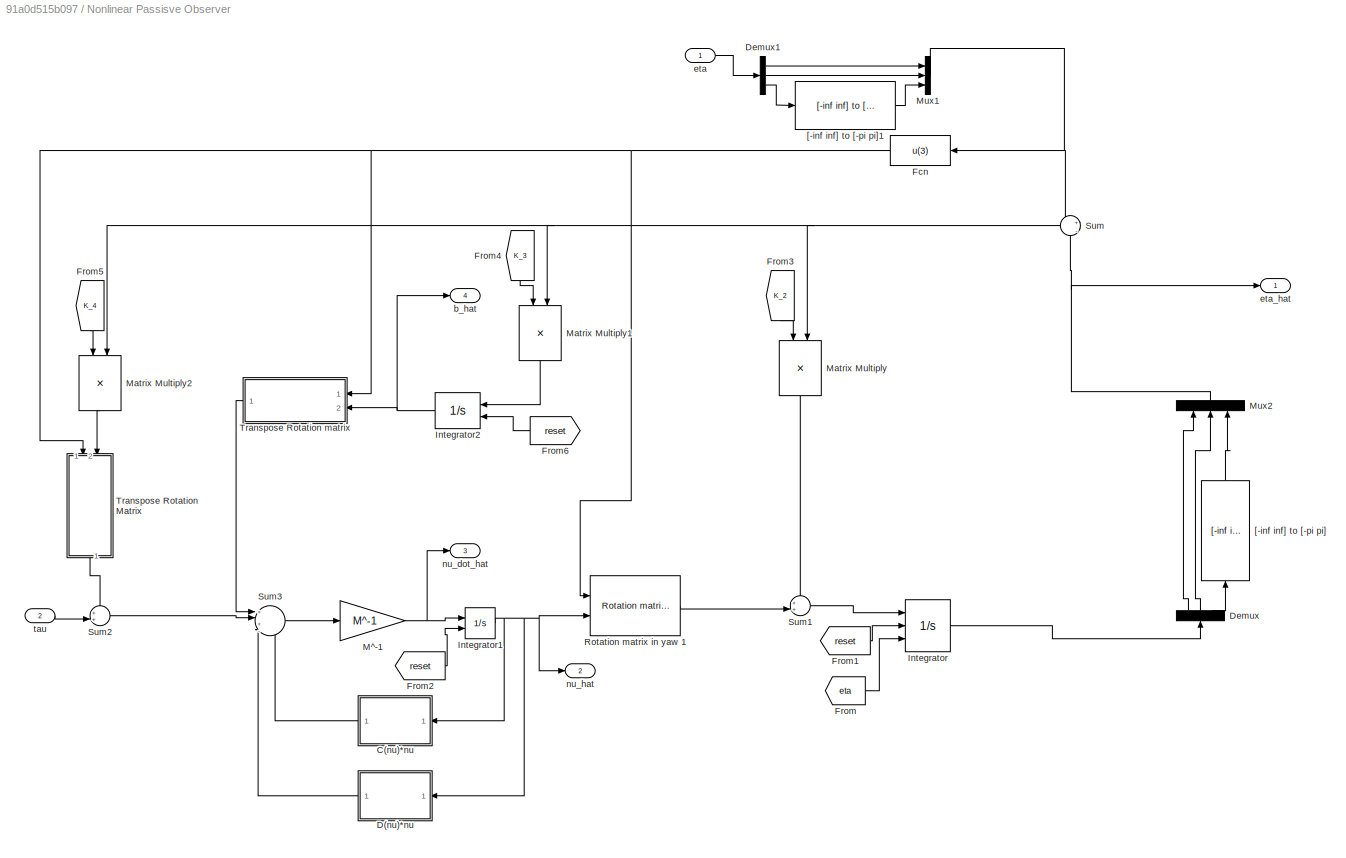
BLOCK [SubSystem] Nonlinear Passisve Observer
  Ports = [2, 4]
  RequestExecContextInheritance = off
  Variant = off
BLOCK [SubSystem] Nonlinear Passisve Observer/C(nu)*nu
  ErrorFcn = Stateflow.Translate.translate
  PermitHierarchicalResolution = ExplicitOnly
  Ports = [1, 1]
  RequestExecContextInheritance = off
  SFBlockType = MATLAB Function
  TreatAsAtomicUnit = on
  Variant = off
BLOCK [Demux] Nonlinear Passisve Observer/C(nu)*nu/ Demux 
  Outputs = 1
  Ports = [1, 1]
BLOCK [S-Function] Nonlinear Passisve Observer/C(nu)*nu/ SFunction 
  EnableBusSupport = on
  FunctionName = sf_sfun
  PortCounts = [1 2]
  Ports = [1, 2]
  SFcnIsStateOwnerBlock = off
  SFunctionDeploymentMode = off
  Tag = Stateflow S-Function ctrl_DP 15
BLOCK [Terminator] Nonlinear Passisve Observer/C(nu)*nu/ Terminator 
BLOCK [Outport] Nonlinear Passisve Observer/C(nu)*nu/C_nl
  IconDisplay = Port number
BLOCK [Inport] Nonlinear Passisve Observer/C(nu)*nu/nu_hat
  IconDisplay = Port number
BLOCK [SubSystem] Nonlinear Passisve Observer/D(nu)*nu
  ErrorFcn = Stateflow.Translate.translate
  PermitHierarchicalResolution = ExplicitOnly
  Ports = [1, 1]
  RequestExecContextInheritance = off
  SFBlockType = MATLAB Function
  TreatAsAtomicUnit = on
  Variant = off
BLOCK [Demux] Nonlinear Passisve Observer/D(nu)*nu/ Demux 
  Outputs = 1
  Ports = [1, 1]
BLOCK [S-Function] Nonlinear Passisve Observer/D(nu)*nu/ SFunction 
  EnableBusSupport = on
  FunctionName = sf_sfun
  PortCounts = [1 2]
  Ports = [1, 2]
  SFcnIsStateOwnerBlock = off
  SFunctionDeploymentMode = off
  Tag = Stateflow S-Function ctrl_DP 14
BLOCK [Terminator] Nonlinear Passisve Observer/D(nu)*nu/ Terminator 
BLOCK [Outport] Nonlinear Passisve Observer/D(nu)*nu/D_nl
  IconDisplay = Port number
BLOCK [Inport] Nonlinear Passisve Observer/D(nu)*nu/nu_hat
  IconDisplay = Port number
BLOCK [Demux] Nonlinear Passisve Observer/Demux
  DisplayOption = bar
  Outputs = 3
  Ports = [1, 3]
BLOCK [Demux] Nonlinear Passisve Observer/Demux1
  DisplayOption = bar
  Outputs = 3
  Ports = [1, 3]
BLOCK [Fcn] Nonlinear Passisve Observer/Fcn
  Expr = u(3)
BLOCK [From] Nonlinear Passisve Observer/From
  GotoTag = eta
  TagVisibility = global
BLOCK [From] Nonlinear Passisve Observer/From1
  GotoTag = reset
  TagVisibility = global
BLOCK [From] Nonlinear Passisve Observer/From2
  GotoTag = reset
  TagVisibility = global
BLOCK [From] Nonlinear Passisve Observer/From3
  GotoTag = K_2
  TagVisibility = global
BLOCK [From] Nonlinear Passisve Observer/From4
  GotoTag = K_3
  TagVisibility = global
BLOCK [From] Nonlinear Passisve Observer/From5
  GotoTag = K_4
  TagVisibility = global
BLOCK [From] Nonlinear Passisve Observer/From6
  GotoTag = reset
  TagVisibility = global
BLOCK [Integrator] Nonlinear Passisve Observer/Integrator
  ExternalReset = either
  InitialConditionSource = external
  Ports = [3, 1]
BLOCK [Integrator] Nonlinear Passisve Observer/Integrator1
  ExternalReset = either
  InitialCondition = [0 0 0]'
  Ports = [2, 1]
BLOCK [Integrator] Nonlinear Passisve Observer/Integrator2
  ExternalReset = either
  InitialCondition = [0 0 0]'
  Ports = [2, 1]
BLOCK [Gain] Nonlinear Passisve Observer/M^-1
  Gain = M^-1
  Multiplication = Matrix(K*u)
  OutDataTypeStr = Inherit: Inherit via internal rule
  ParamDataTypeStr = Inherit: Inherit via internal rule
  SaturateOnIntegerOverflow = off
BLOCK [Product] Nonlinear Passisve Observer/Matrix Multiply
  InputSameDT = off
  Multiplication = Matrix(*)
  OutDataTypeStr = Inherit: Inherit via internal rule
  Ports = [2, 1]
  RndMeth = Floor
  SaturateOnIntegerOverflow = off
BLOCK [Product] Nonlinear Passisve Observer/Matrix Multiply1
  InputSameDT = off
  Multiplication = Matrix(*)
  OutDataTypeStr = Inherit: Inherit via internal rule
  Ports = [2, 1]
  RndMeth = Floor
  SaturateOnIntegerOverflow = off
BLOCK [Product] Nonlinear Passisve Observer/Matrix Multiply2
  InputSameDT = off
  Multiplication = Matrix(*)
  OutDataTypeStr = Inherit: Inherit via internal rule
  Ports = [2, 1]
  RndMeth = Floor
  SaturateOnIntegerOverflow = off
BLOCK [Mux] Nonlinear Passisve Observer/Mux1
  DisplayOption = bar
  Inputs = 3
  Ports = [3, 1]
BLOCK [Mux] Nonlinear Passisve Observer/Mux2
  DisplayOption = bar
  Inputs = 3
  Ports = [3, 1]
BLOCK [Reference] Nonlinear Passisve Observer/Rotation matrix in yaw 1  REF=marine_gnc/Models/ Kinematics/Rotation matrix  (lib defined in mdl_10d96c221ba8, mdl_45f1105420c6)
in yaw 
  Ports = [2, 1]
  SourceBlock = marine_gnc/Models/ Kinematics/Rotation matrix\nin yaw
BLOCK [Sum] Nonlinear Passisve Observer/Sum
  IconShape = round
  InputSameDT = off
  Inputs = +|-
  OutDataTypeStr = Inherit: Inherit via internal rule
  Ports = [2, 1]
  SaturateOnIntegerOverflow = off
BLOCK [Sum] Nonlinear Passisve Observer/Sum1
  IconShape = round
  InputSameDT = off
  Inputs = ++|
  OutDataTypeStr = Inherit: Inherit via internal rule
  Ports = [2, 1]
  SaturateOnIntegerOverflow = off
BLOCK [Sum] Nonlinear Passisve Observer/Sum2
  IconShape = round
  InputSameDT = off
  Inputs = ++|
  OutDataTypeStr = Inherit: Inherit via internal rule
  Ports = [2, 1]
  SaturateOnIntegerOverflow = off
BLOCK [Sum] Nonlinear Passisve Observer/Sum3
  IconShape = round
  InputSameDT = off
  Inputs = +|+|--
  OutDataTypeStr = Inherit: Inherit via internal rule
  Ports = [4, 1]
  SaturateOnIntegerOverflow = off
BLOCK [SubSystem] Nonlinear Passisve Observer/Transpose Rotation Matrix
  Ports = [2, 1]
  RequestExecContextInheritance = off
  Variant = off
BLOCK [Mux] Nonlinear Passisve Observer/Transpose Rotation Matrix/Mux
  Inputs = 2
  Ports = [2, 1]
BLOCK [Mux] Nonlinear Passisve Observer/Transpose Rotation Matrix/Mux1
  Inputs = 3
  Ports = [3, 1]
BLOCK [Outport] Nonlinear Passisve Observer/Transpose Rotation Matrix/R(psi)'*y_tilde
  IconDisplay = Port number
BLOCK [Fcn] Nonlinear Passisve Observer/Transpose Rotation Matrix/Row1
  Expr = cos(u(1))*u(2)+sin(u(1))*u(3)
BLOCK [Fcn] Nonlinear Passisve Observer/Transpose Rotation Matrix/Row2
  Expr = -sin(u(1))*u(2)+cos(u(1))*u(3)
BLOCK [Fcn] Nonlinear Passisve Observer/Transpose Rotation Matrix/Row3
  Expr = u(4)
BLOCK [Inport] Nonlinear Passisve Observer/Transpose Rotation Matrix/psi
  IconDisplay = Port number
BLOCK [Inport] Nonlinear Passisve Observer/Transpose Rotation Matrix/y_tilde
  IconDisplay = Port number
  Port = 2
BLOCK [SubSystem] Nonlinear Passisve Observer/Transpose Rotation matrix
  Ports = [2, 1]
  RequestExecContextInheritance = off
  Variant = off
BLOCK [Mux] Nonlinear Passisve Observer/Transpose Rotation matrix/Mux
  Inputs = 2
  Ports = [2, 1]
BLOCK [Mux] Nonlinear Passisve Observer/Transpose Rotation matrix/Mux1
  Inputs = 3
  Ports = [3, 1]
BLOCK [Outport] Nonlinear Passisve Observer/Transpose Rotation matrix/R(psi)'*b_hat
  IconDisplay = Port number
BLOCK [Fcn] Nonlinear Passisve Observer/Transpose Rotation matrix/Row1
  Expr = cos(u(1))*u(2)+sin(u(1))*u(3)
BLOCK [Fcn] Nonlinear Passisve Observer/Transpose Rotation matrix/Row2
  Expr = -sin(u(1))*u(2)+cos(u(1))*u(3)
BLOCK [Fcn] Nonlinear Passisve Observer/Transpose Rotation matrix/Row3
  Expr = u(4)
BLOCK [Inport] Nonlinear Passisve Observer/Transpose Rotation matrix/b_hat
  IconDisplay = Port number
  Port = 2
BLOCK [Inport] Nonlinear Passisve Observer/Transpose Rotation matrix/psi
  IconDisplay = Port number
BLOCK [Reference] Nonlinear Passisve Observer/[-inf inf] to [-pi pi]  REF=marine_gnc/Utilities/Math Operations/[-inf inf] to [-pi pi]  (lib defined in mdl_10d96c221ba8, mdl_45f1105420c6)
  Ports = [1, 1]
  SourceBlock = marine_gnc/Utilities/Math Operations/[-inf inf] to [-pi pi]
  SourceType = [-inf inf] to [-pi pi]
BLOCK [Reference] Nonlinear Passisve Observer/[-inf inf] to [-pi pi]1  REF=marine_gnc/Utilities/Math Operations/[-inf inf] to [-pi pi]  (lib defined in mdl_10d96c221ba8, mdl_45f1105420c6)
  Ports = [1, 1]
  SourceBlock = marine_gnc/Utilities/Math Operations/[-inf inf] to [-pi pi]
  SourceType = [-inf inf] to [-pi pi]
BLOCK [Outport] Nonlinear Passisve Observer/b_hat
  IconDisplay = Port number
  Port = 4
BLOCK [Inport] Nonlinear Passisve Observer/eta
  IconDisplay = Port number
BLOCK [Outport] Nonlinear Passisve Observer/eta_hat
  IconDisplay = Port number
BLOCK [Outport] Nonlinear Passisve Observer/nu_dot_hat
  IconDisplay = Port number
  Port = 3
BLOCK [Outport] Nonlinear Passisve Observer/nu_hat
  IconDisplay = Port number
  Port = 2
BLOCK [Inport] Nonlinear Passisve Observer/tau
  IconDisplay = Port number
  Port = 2
BLOCK [SubSystem] Observer output 
  Ports = [4]
  RequestExecContextInheritance = off
  Variant = off
BLOCK [Inport] Observer output /b_hat
  IconDisplay = Port number
  Port = 4
BLOCK [SubSystem] Observer output /b_hat output
  Ports = [1]
  RequestExecContextInheritance = off
  Variant = off
BLOCK [Demux] Observer output /b_hat output/Demux
  DisplayOption = bar
  Outputs = 3
  Ports = [1, 3]
BLOCK [Inport] Observer output /b_hat output/b_hat
  IconDisplay = Port number
BLOCK [S-Function] Observer output /b_hat output/b_psi_hat
  CopyFcn = NIVeriStand_MDL_functions('', 'IO_copy');
  DeleteFcn = NIVeriStand_MDL_functions('', 'IO_delete');
  EnableBusSupport = off
  FunctionName = NIVeriStandIO
  MoveFcn = set_param(gcb, 'Mask', 'on');
  Parameters = width dtype portnum stime stype btype
  Ports = [1]
  Priority = 3
  SFcnIsStateOwnerBlock = off
  SFunctionDeploymentMode = off
BLOCK [S-Function] Observer output /b_hat output/b_x_hat
  CopyFcn = NIVeriStand_MDL_functions('', 'IO_copy');
  DeleteFcn = NIVeriStand_MDL_functions('', 'IO_delete');
  EnableBusSupport = off
  FunctionName = NIVeriStandIO
  MoveFcn = set_param(gcb, 'Mask', 'on');
  Parameters = width dtype portnum stime stype btype
  Ports = [1]
  Priority = 1
  SFcnIsStateOwnerBlock = off
  SFunctionDeploymentMode = off
BLOCK [S-Function] Observer output /b_hat output/b_y_hat
  CopyFcn = NIVeriStand_MDL_functions('', 'IO_copy');
  DeleteFcn = NIVeriStand_MDL_functions('', 'IO_delete');
  EnableBusSupport = off
  FunctionName = NIVeriStandIO
  MoveFcn = set_param(gcb, 'Mask', 'on');
  Parameters = width dtype portnum stime stype btype
  Ports = [1]
  Priority = 2
  SFcnIsStateOwnerBlock = off
  SFunctionDeploymentMode = off
BLOCK [Inport] Observer output /eta_hat
  IconDisplay = Port number
BLOCK [SubSystem] Observer output /eta_hat output
  Ports = [1]
  RequestExecContextInheritance = off
  Variant = off
BLOCK [Demux] Observer output /eta_hat output/Demux
  DisplayOption = bar
  Outputs = 3
  Ports = [1, 3]
BLOCK [Inport] Observer output /eta_hat output/eta-_hat
  IconDisplay = Port number
BLOCK [S-Function] Observer output /eta_hat output/psi_hat
  CopyFcn = NIVeriStand_MDL_functions('', 'IO_copy');
  DeleteFcn = NIVeriStand_MDL_functions('', 'IO_delete');
  EnableBusSupport = off
  FunctionName = NIVeriStandIO
  MoveFcn = set_param(gcb, 'Mask', 'on');
  Parameters = width dtype portnum stime stype btype
  Ports = [1]
  Priority = 3
  SFcnIsStateOwnerBlock = off
  SFunctionDeploymentMode = off
BLOCK [S-Function] Observer output /eta_hat output/x_hat
  CopyFcn = NIVeriStand_MDL_functions('', 'IO_copy');
  DeleteFcn = NIVeriStand_MDL_functions('', 'IO_delete');
  EnableBusSupport = off
  FunctionName = NIVeriStandIO
  MoveFcn = set_param(gcb, 'Mask', 'on');
  Parameters = width dtype portnum stime stype btype
  Ports = [1]
  Priority = 1
  SFcnIsStateOwnerBlock = off
  SFunctionDeploymentMode = off
BLOCK [S-Function] Observer output /eta_hat output/y_hat
  CopyFcn = NIVeriStand_MDL_functions('', 'IO_copy');
  DeleteFcn = NIVeriStand_MDL_functions('', 'IO_delete');
  EnableBusSupport = off
  FunctionName = NIVeriStandIO
  MoveFcn = set_param(gcb, 'Mask', 'on');
  Parameters = width dtype portnum stime stype btype
  Ports = [1]
  Priority = 2
  SFcnIsStateOwnerBlock = off
  SFunctionDeploymentMode = off
BLOCK [Inport] Observer output /nu_dot_hat
  IconDisplay = Port number
  Port = 3
BLOCK [SubSystem] Observer output /nu_dot_hat output
  Ports = [1]
  RequestExecContextInheritance = off
  Variant = off
BLOCK [Demux] Observer output /nu_dot_hat output/Demux
  DisplayOption = bar
  Outputs = 3
  Ports = [1, 3]
BLOCK [Inport] Observer output /nu_dot_hat output/nu_dot_hat
  IconDisplay = Port number
BLOCK [S-Function] Observer output /nu_dot_hat output/r_dot_hat
  CopyFcn = NIVeriStand_MDL_functions('', 'IO_copy');
  DeleteFcn = NIVeriStand_MDL_functions('', 'IO_delete');
  EnableBusSupport = off
  FunctionName = NIVeriStandIO
  MoveFcn = set_param(gcb, 'Mask', 'on');
  Parameters = width dtype portnum stime stype btype
  Ports = [1]
  Priority = 3
  SFcnIsStateOwnerBlock = off
  SFunctionDeploymentMode = off
BLOCK [S-Function] Observer output /nu_dot_hat output/u_dot_hat
  CopyFcn = NIVeriStand_MDL_functions('', 'IO_copy');
  DeleteFcn = NIVeriStand_MDL_functions('', 'IO_delete');
  EnableBusSupport = off
  FunctionName = NIVeriStandIO
  MoveFcn = set_param(gcb, 'Mask', 'on');
  Parameters = width dtype portnum stime stype btype
  Ports = [1]
  Priority = 1
  SFcnIsStateOwnerBlock = off
  SFunctionDeploymentMode = off
BLOCK [S-Function] Observer output /nu_dot_hat output/v_dot_hat
  CopyFcn = NIVeriStand_MDL_functions('', 'IO_copy');
  DeleteFcn = NIVeriStand_MDL_functions('', 'IO_delete');
  EnableBusSupport = off
  FunctionName = NIVeriStandIO
  MoveFcn = set_param(gcb, 'Mask', 'on');
  Parameters = width dtype portnum stime stype btype
  Ports = [1]
  Priority = 2
  SFcnIsStateOwnerBlock = off
  SFunctionDeploymentMode = off
BLOCK [Inport] Observer output /nu_hat
  IconDisplay = Port number
  Port = 2
BLOCK [SubSystem] Observer output /nu_hat output
  Ports = [1]
  RequestExecContextInheritance = off
  Variant = off
BLOCK [Demux] Observer output /nu_hat output/Demux
  DisplayOption = bar
  Outputs = 3
  Ports = [1, 3]
BLOCK [Inport] Observer output /nu_hat output/nu_hat
  IconDisplay = Port number
BLOCK [S-Function] Observer output /nu_hat output/r_hat
  CopyFcn = NIVeriStand_MDL_functions('', 'IO_copy');
  DeleteFcn = NIVeriStand_MDL_functions('', 'IO_delete');
  EnableBusSupport = off
  FunctionName = NIVeriStandIO
  MoveFcn = set_param(gcb, 'Mask', 'on');
  Parameters = width dtype portnum stime stype btype
  Ports = [1]
  Priority = 3
  SFcnIsStateOwnerBlock = off
  SFunctionDeploymentMode = off
BLOCK [S-Function] Observer output /nu_hat output/u_hat
  CopyFcn = NIVeriStand_MDL_functions('', 'IO_copy');
  DeleteFcn = NIVeriStand_MDL_functions('', 'IO_delete');
  EnableBusSupport = off
  FunctionName = NIVeriStandIO
  MoveFcn = set_param(gcb, 'Mask', 'on');
  Parameters = width dtype portnum stime stype btype
  Ports = [1]
  Priority = 1
  SFcnIsStateOwnerBlock = off
  SFunctionDeploymentMode = off
BLOCK [S-Function] Observer output /nu_hat output/v_hat
  CopyFcn = NIVeriStand_MDL_functions('', 'IO_copy');
  DeleteFcn = NIVeriStand_MDL_functions('', 'IO_delete');
  EnableBusSupport = off
  FunctionName = NIVeriStandIO
  MoveFcn = set_param(gcb, 'Mask', 'on');
  Parameters = width dtype portnum stime stype btype
  Ports = [1]
  Priority = 2
  SFcnIsStateOwnerBlock = off
  SFunctionDeploymentMode = off
BLOCK [SubSystem] POSE
  Ports = [0, 1]
  RequestExecContextInheritance = off
  Variant = off
BLOCK [Constant] POSE/Constant1
  Value = 2*pi
BLOCK [Gain] POSE/Gain5
  Gain = pi/180
  OutDataTypeStr = Inherit: Inherit via internal rule
  ParamDataTypeStr = Inherit: Inherit via internal rule
  SaturateOnIntegerOverflow = off
BLOCK [Gain] POSE/Gain6
  Gain = pi
BLOCK [Math] POSE/Math Function
  Operator = rem
  Ports = [2, 1]
BLOCK [Mux] POSE/Mux
  DisplayOption = bar
  Inputs = 3
  Ports = [3, 1]
BLOCK [Outport] POSE/QTM
  IconDisplay = Port number
BLOCK [Saturate] POSE/Saturation
  InputPortMap = u0
  LowerLimit = -1e10
  Ports = [1, 1]
  UpperLimit = 1e10
BLOCK [Signum] POSE/Sign
BLOCK [Sum] POSE/Sum
  IconShape = round
  InputSameDT = off
  Inputs = |+-
  OutDataTypeStr = Inherit: Inherit via internal rule
  Ports = [2, 1]
BLOCK [Sum] POSE/Sum1
  IconShape = round
  InputSameDT = off
  Inputs = |++
  OutDataTypeStr = Inherit: Inherit via internal rule
  Ports = [2, 1]
BLOCK [Gain] POSE/mm2m
  Gain = 1/1000
  OutDataTypeStr = Inherit: Inherit via internal rule
  ParamDataTypeStr = Inherit: Inherit via internal rule
  SaturateOnIntegerOverflow = off
BLOCK [Gain] POSE/mm2m 
  Gain = 1/1000
  OutDataTypeStr = Inherit: Inherit via internal rule
  ParamDataTypeStr = Inherit: Inherit via internal rule
  SaturateOnIntegerOverflow = off
BLOCK [S-Function] POSE/psi
  CopyFcn = NIVeriStand_MDL_functions('', 'IO_copy');
  DeleteFcn = NIVeriStand_MDL_functions('', 'IO_delete');
  EnableBusSupport = off
  FunctionName = NIVeriStandIO
  MoveFcn = set_param(gcb, 'Mask', 'on');
  Parameters = width dtype portnum stime stype btype
  Ports = [0, 1]
  Priority = 3
  SFcnIsStateOwnerBlock = off
  SFunctionDeploymentMode = off
BLOCK [S-Function] POSE/x
  CopyFcn = NIVeriStand_MDL_functions('', 'IO_copy');
  DeleteFcn = NIVeriStand_MDL_functions('', 'IO_delete');
  EnableBusSupport = off
  FunctionName = NIVeriStandIO
  MoveFcn = set_param(gcb, 'Mask', 'on');
  Parameters = width dtype portnum stime stype btype
  Ports = [0, 1]
  Priority = 1
  SFcnIsStateOwnerBlock = off
  SFunctionDeploymentMode = off
BLOCK [S-Function] POSE/y
  CopyFcn = NIVeriStand_MDL_functions('', 'IO_copy');
  DeleteFcn = NIVeriStand_MDL_functions('', 'IO_delete');
  EnableBusSupport = off
  FunctionName = NIVeriStandIO
  MoveFcn = set_param(gcb, 'Mask', 'on');
  Parameters = width dtype portnum stime stype btype
  Ports = [0, 1]
  Priority = 2
  SFcnIsStateOwnerBlock = off
  SFunctionDeploymentMode = off
BLOCK [Terminator] Terminator
BLOCK [SubSystem] Thrust allocation
  ErrorFcn = Stateflow.Translate.translate
  PermitHierarchicalResolution = ExplicitOnly
  Ports = [4, 4]
  RequestExecContextInheritance = off
  SFBlockType = MATLAB Function
  TreatAsAtomicUnit = on
  Variant = off
BLOCK [Demux] Thrust allocation/ Demux 
  Outputs = 1
  Ports = [1, 1]
BLOCK [S-Function] Thrust allocation/ SFunction 
  EnableBusSupport = on
  FunctionName = sf_sfun
  PortCounts = [4 5]
  Ports = [4, 5]
  SFcnIsStateOwnerBlock = off
  SFunctionDeploymentMode = off
  Tag = Stateflow S-Function ctrl_DP 1
BLOCK [Terminator] Thrust allocation/ Terminator 
BLOCK [Inport] Thrust allocation/N
  IconDisplay = Port number
  Port = 3
BLOCK [Inport] Thrust allocation/VSP_on
  IconDisplay = Port number
  Port = 4
BLOCK [Inport] Thrust allocation/X
  IconDisplay = Port number
BLOCK [Inport] Thrust allocation/Y
  IconDisplay = Port number
  Port = 2
BLOCK [Outport] Thrust allocation/alpha_VSP
  IconDisplay = Port number
  Port = 3
BLOCK [Outport] Thrust allocation/omega_VSP
  IconDisplay = Port number
  Port = 4
BLOCK [Outport] Thrust allocation/u_BT
  IconDisplay = Port number
BLOCK [Outport] Thrust allocation/u_VSP
  IconDisplay = Port number
  Port = 2
BLOCK [S-Function] alpha_VSP1
  CopyFcn = NIVeriStand_MDL_functions('', 'IO_copy');
  DeleteFcn = NIVeriStand_MDL_functions('', 'IO_delete');
  EnableBusSupport = off
  FunctionName = NIVeriStandIO
  MoveFcn = set_param(gcb, 'Mask', 'on');
  Parameters = width dtype portnum stime stype btype
  Ports = [1]
  Priority = 4
  SFcnIsStateOwnerBlock = off
  SFunctionDeploymentMode = off
BLOCK [S-Function] alpha_VSP2
  CopyFcn = NIVeriStand_MDL_functions('', 'IO_copy');
  DeleteFcn = NIVeriStand_MDL_functions('', 'IO_delete');
  EnableBusSupport = off
  FunctionName = NIVeriStandIO
  MoveFcn = set_param(gcb, 'Mask', 'on');
  Parameters = width dtype portnum stime stype btype
  Ports = [1]
  Priority = 1
  SFcnIsStateOwnerBlock = off
  SFunctionDeploymentMode = off
BLOCK [S-Function] omega_VSP1
  CopyFcn = NIVeriStand_MDL_functions('', 'IO_copy');
  DeleteFcn = NIVeriStand_MDL_functions('', 'IO_delete');
  EnableBusSupport = off
  FunctionName = NIVeriStandIO
  MoveFcn = set_param(gcb, 'Mask', 'on');
  Parameters = width dtype portnum stime stype btype
  Ports = [1]
  Priority = 2
  SFcnIsStateOwnerBlock = off
  SFunctionDeploymentMode = off
BLOCK [S-Function] omega_VSP2
  CopyFcn = NIVeriStand_MDL_functions('', 'IO_copy');
  DeleteFcn = NIVeriStand_MDL_functions('', 'IO_delete');
  EnableBusSupport = off
  FunctionName = NIVeriStandIO
  MoveFcn = set_param(gcb, 'Mask', 'on');
  Parameters = width dtype portnum stime stype btype
  Ports = [1]
  Priority = 3
  SFcnIsStateOwnerBlock = off
  SFunctionDeploymentMode = off
BLOCK [SubSystem] u_2_tau
  Ports = [2, 1]
  RequestExecContextInheritance = off
  Variant = off
BLOCK [Demux] u_2_tau/Demux
  DisplayOption = bar
  Outputs = 3
  Ports = [1, 3]
BLOCK [Mux] u_2_tau/Mux2
  DisplayOption = bar
  Inputs = 3
  Ports = [3, 1]
BLOCK [SubSystem] u_2_tau/Thruster configuration matrix
  ErrorFcn = Stateflow.Translate.translate
  PermitHierarchicalResolution = ExplicitOnly
  Ports = [3, 3]
  RequestExecContextInheritance = off
  SFBlockType = MATLAB Function
  TreatAsAtomicUnit = on
  Variant = off
BLOCK [Demux] u_2_tau/Thruster configuration matrix/ Demux 
  Outputs = 1
  Ports = [1, 1]
BLOCK [S-Function] u_2_tau/Thruster configuration matrix/ SFunction 
  EnableBusSupport = on
  FunctionName = sf_sfun
  PortCounts = [3 4]
  Ports = [3, 4]
  SFcnIsStateOwnerBlock = off
  SFunctionDeploymentMode = off
  Tag = Stateflow S-Function ctrl_DP 12
BLOCK [Terminator] u_2_tau/Thruster configuration matrix/ Terminator 
BLOCK [Inport] u_2_tau/Thruster configuration matrix/F_x_VSP
  IconDisplay = Port number
  Port = 2
BLOCK [Inport] u_2_tau/Thruster configuration matrix/F_y_BT
  IconDisplay = Port number
BLOCK [Inport] u_2_tau/Thruster configuration matrix/F_y_VSP
  IconDisplay = Port number
  Port = 3
BLOCK [Outport] u_2_tau/Thruster configuration matrix/tau_r
  IconDisplay = Port number
  Port = 3
BLOCK [Outport] u_2_tau/Thruster configuration matrix/tau_u
  IconDisplay = Port number
BLOCK [Outport] u_2_tau/Thruster configuration matrix/tau_v
  IconDisplay = Port number
  Port = 2
BLOCK [SubSystem] u_2_tau/Thruster mapping
  Ports = [4, 3]
  RequestExecContextInheritance = off
  Variant = off
BLOCK [SubSystem] u_2_tau/Thruster mapping/Bow thruster
  ErrorFcn = Stateflow.Translate.translate
  PermitHierarchicalResolution = ExplicitOnly
  Ports = [2, 1]
  RequestExecContextInheritance = off
  SFBlockType = MATLAB Function
  TreatAsAtomicUnit = on
  Variant = off
BLOCK [Demux] u_2_tau/Thruster mapping/Bow thruster/ Demux 
  Outputs = 1
  Ports = [1, 1]
BLOCK [S-Function] u_2_tau/Thruster mapping/Bow thruster/ SFunction 
  EnableBusSupport = on
  FunctionName = sf_sfun
  PortCounts = [2 2]
  Ports = [2, 2]
  SFcnIsStateOwnerBlock = off
  SFunctionDeploymentMode = off
  Tag = Stateflow S-Function ctrl_DP 13
BLOCK [Terminator] u_2_tau/Thruster mapping/Bow thruster/ Terminator 
BLOCK [Outport] u_2_tau/Thruster mapping/Bow thruster/F_y
  IconDisplay = Port number
BLOCK [Inport] u_2_tau/Thruster mapping/Bow thruster/nu
  IconDisplay = Port number
  Port = 2
BLOCK [Inport] u_2_tau/Thruster mapping/Bow thruster/u_BT
  IconDisplay = Port number
BLOCK [Outport] u_2_tau/Thruster mapping/F_x_VSP
  IconDisplay = Port number
  Port = 2
BLOCK [Outport] u_2_tau/Thruster mapping/F_y_BT
  IconDisplay = Port number
BLOCK [Outport] u_2_tau/Thruster mapping/F_y_VSP
  IconDisplay = Port number
  Port = 3
BLOCK [SubSystem] u_2_tau/Thruster mapping/VSP
  ErrorFcn = Stateflow.Translate.translate
  PermitHierarchicalResolution = ExplicitOnly
  Ports = [2, 2]
  RequestExecContextInheritance = off
  SFBlockType = MATLAB Function
  TreatAsAtomicUnit = on
  Variant = off
BLOCK [Demux] u_2_tau/Thruster mapping/VSP/ Demux 
  Outputs = 1
  Ports = [1, 1]
BLOCK [S-Function] u_2_tau/Thruster mapping/VSP/ SFunction 
  EnableBusSupport = on
  FunctionName = sf_sfun
  PortCounts = [2 3]
  Ports = [2, 3]
  SFcnIsStateOwnerBlock = off
  SFunctionDeploymentMode = off
  Tag = Stateflow S-Function ctrl_DP 19
BLOCK [Terminator] u_2_tau/Thruster mapping/VSP/ Terminator 
BLOCK [Outport] u_2_tau/Thruster mapping/VSP/F_x
  IconDisplay = Port number
BLOCK [Outport] u_2_tau/Thruster mapping/VSP/F_y
  IconDisplay = Port number
  Port = 2
BLOCK [Inport] u_2_tau/Thruster mapping/VSP/alpha
  IconDisplay = Port number
BLOCK [Inport] u_2_tau/Thruster mapping/VSP/u_VST
  IconDisplay = Port number
  Port = 2
BLOCK [Inport] u_2_tau/Thruster mapping/alpha
  IconDisplay = Port number
  Port = 3
BLOCK [Inport] u_2_tau/Thruster mapping/nu
  IconDisplay = Port number
  Port = 4
BLOCK [Inport] u_2_tau/Thruster mapping/u_BT
  IconDisplay = Port number
BLOCK [Inport] u_2_tau/Thruster mapping/u_VSP
  IconDisplay = Port number
  Port = 2
BLOCK [Inport] u_2_tau/nu_hat
  IconDisplay = Port number
  Port = 2
BLOCK [Outport] u_2_tau/tau_actual
  IconDisplay = Port number
BLOCK [Inport] u_2_tau/u
  IconDisplay = Port number
BLOCK [S-Function] u_BT
  CopyFcn = NIVeriStand_MDL_functions('', 'IO_copy');
  DeleteFcn = NIVeriStand_MDL_functions('', 'IO_delete');
  EnableBusSupport = off
  FunctionName = NIVeriStandIO
  MoveFcn = set_param(gcb, 'Mask', 'on');
  Parameters = width dtype portnum stime stype btype
  Ports = [1]
  Priority = 5
  SFcnIsStateOwnerBlock = off
  SFunctionDeploymentMode = off
BLOCK [S-Function] u_VSP1
  CopyFcn = NIVeriStand_MDL_functions('', 'IO_copy');
  DeleteFcn = NIVeriStand_MDL_functions('', 'IO_delete');
  EnableBusSupport = off
  FunctionName = NIVeriStandIO
  MoveFcn = set_param(gcb, 'Mask', 'on');
  Parameters = width dtype portnum stime stype btype
  Ports = [1]
  Priority = 6
  SFcnIsStateOwnerBlock = off
  SFunctionDeploymentMode = off
BLOCK [S-Function] u_VSP2
  CopyFcn = NIVeriStand_MDL_functions('', 'IO_copy');
  DeleteFcn = NIVeriStand_MDL_functions('', 'IO_delete');
  EnableBusSupport = off
  FunctionName = NIVeriStandIO
  MoveFcn = set_param(gcb, 'Mask', 'on');
  Parameters = width dtype portnum stime stype btype
  Ports = [1]
  Priority = 7
  SFcnIsStateOwnerBlock = off
  SFunctionDeploymentMode = off
BLOCK [S-Function] x_est
  CopyFcn = NIVeriStand_MDL_functions('', 'IO_copy');
  DeleteFcn = NIVeriStand_MDL_functions('', 'IO_delete');
  EnableBusSupport = off
  FunctionName = NIVeriStandIO
  MoveFcn = set_param(gcb, 'Mask', 'on');
  Parameters = width dtype portnum stime stype btype
  Ports = [1]
  Priority = 8
  SFcnIsStateOwnerBlock = off
  SFunctionDeploymentMode = off
BLOCK [S-Function] y_est
  CopyFcn = NIVeriStand_MDL_functions('', 'IO_copy');
  DeleteFcn = NIVeriStand_MDL_functions('', 'IO_delete');
  EnableBusSupport = off
  FunctionName = NIVeriStandIO
  MoveFcn = set_param(gcb, 'Mask', 'on');
  Parameters = width dtype portnum stime stype btype
  Ports = [1]
  Priority = 9
  SFcnIsStateOwnerBlock = off
  SFunctionDeploymentMode = off
BLOCK [S-Function] z_est
  CopyFcn = NIVeriStand_MDL_functions('', 'IO_copy');
  DeleteFcn = NIVeriStand_MDL_functions('', 'IO_delete');
  EnableBusSupport = off
  FunctionName = NIVeriStandIO
  MoveFcn = set_param(gcb, 'Mask', 'on');
  Parameters = width dtype portnum stime stype btype
  Ports = [1]
  Priority = 10
  SFcnIsStateOwnerBlock = off
  SFunctionDeploymentMode = off
BLOCK [S-Function] z_m
  CopyFcn = NIVeriStand_MDL_functions('', 'IO_copy');
  DeleteFcn = NIVeriStand_MDL_functions('', 'IO_delete');
  EnableBusSupport = off
  FunctionName = NIVeriStandIO
  MoveFcn = set_param(gcb, 'Mask', 'on');
  Parameters = width dtype portnum stime stype btype
  Ports = [0, 1]
  Priority = 1
  SFcnIsStateOwnerBlock = off
  SFunctionDeploymentMode = off
ANNOTATION IMU: Measurement in deg/s
ANNOTATION IMU: Measurement in g
ANNOTATION Input/Observer Gains: K_2
ANNOTATION Input/Observer Gains: K_3
ANNOTATION Input/Observer Gains: K_4
ANNOTATION POSE: r
ANNOTATION POSE: x
LINE Constant:1 -> Thrust allocation:4
LINE Control output/Demux1:1 -> Control output/x_tilde:1
LINE Control output/Demux1:2 -> Control output/y_tidle:1
LINE Control output/Demux1:3 -> Control output/psi_tilde:1
LINE Control output/Demux2:1 -> Control output/u_tilde:1
LINE Control output/Demux2:2 -> Control output/v_tilde:1
LINE Control output/Demux2:3 -> Control output/r_tilde:1
LINE Control output/Demux4:1 -> Control output/tau_X:1
LINE Control output/Demux4:2 -> Control output/tau_Y:1
LINE Control output/Demux4:3 -> Control output/tau_N:1
NET Control output/From1:1 -> Control output/Demux1:1, Control output/tau1:1
NET Control output/From2:1 -> Control output/Demux2:1, Control output/tau2:1
NET Control output/From3:1 -> Control output/Demux4:1, Control output/tau:1
LINE Control/DP Controller/Demux:1 -> Control/DP Controller/Mux:1
LINE Control/DP Controller/Demux:2 -> Control/DP Controller/Mux:2
LINE Control/DP Controller/Demux:3 -> Control/DP Controller/[-inf inf] to [-pi pi]:1
LINE Control/DP Controller/From1:1 -> Control/DP Controller/Matrix Multiply1:1
LINE Control/DP Controller/From2:1 -> Control/DP Controller/Matrix Multiply2:1
LINE Control/DP Controller/From3:1 -> Control/DP Controller/Integrator:2
LINE Control/DP Controller/From:1 -> Control/DP Controller/Matrix Multiply:1
LINE Control/DP Controller/Integrator:1 -> Control/DP Controller/Matrix Multiply1:2
LINE Control/DP Controller/Matrix Multiply1:1 -> Control/DP Controller/Sum3:2
LINE Control/DP Controller/Matrix Multiply2:1 -> Control/DP Controller/Sum3:3
LINE Control/DP Controller/Matrix Multiply:1 -> Control/DP Controller/Sum3:1
LINE Control/DP Controller/Mux:1 -> Control/DP Controller/Transposed rotation matrix in yaw1:2
NET Control/DP Controller/Sum2:1 -> Control/DP Controller/Demux:1, Control/DP Controller/Goto:1
LINE Control/DP Controller/Sum3:1 -> Control/DP Controller/tau:1
NET Control/DP Controller/Sum4:1 -> Control/DP Controller/Goto1:1, Control/DP Controller/Matrix Multiply2:2
NET Control/DP Controller/Transposed rotation matrix in yaw1:1 -> Control/DP Controller/Integrator:1, Control/DP Controller/Matrix Multiply:2
LINE Control/DP Controller/Transposed rotation matrix in yaw2:1 -> Control/DP Controller/Sum4:2
LINE Control/DP Controller/[-inf inf] to [-pi pi]1:1 -> Control/DP Controller/Transposed rotation matrix in yaw1:1
LINE Control/DP Controller/[-inf inf] to [-pi pi]:1 -> Control/DP Controller/Mux:3
NET Control/DP Controller/eta:1 -> Control/DP Controller/Sum2:1, Control/DP Controller/yaw angle:1
NET Control/DP Controller/eta_d:1 -> Control/DP Controller/Sum2:2, Control/DP Controller/yaw angle1:1
LINE Control/DP Controller/eta_dot_d:1 -> Control/DP Controller/Transposed rotation matrix in yaw2:2
LINE Control/DP Controller/nu_hat:1 -> Control/DP Controller/Sum4:1
LINE Control/DP Controller/yaw angle1:1 -> Control/DP Controller/Transposed rotation matrix in yaw2:1
LINE Control/DP Controller/yaw angle:1 -> Control/DP Controller/[-inf inf] to [-pi pi]1:1
NET Control/DP Controller:1 -> Control/Goto:1, Control/tau:1
LINE Control/eta:1 -> Control/DP Controller:2
LINE Control/eta_d:1 -> Control/DP Controller:1
LINE Control/eta_dot_d:1 -> Control/DP Controller:4
LINE Control/nu_hat:1 -> Control/DP Controller:3
LINE Control:1 -> Demux:1
LINE Demux1:1 -> Mux:1
LINE Demux1:2 -> Mux:2
LINE Demux1:3 -> EKF INS:2
LINE Demux2:1 -> x_est:1
LINE Demux2:2 -> y_est:1
LINE Demux2:3 -> z_est:1
LINE Demux:1 -> Thrust allocation:1
LINE Demux:2 -> Thrust allocation:2
LINE Demux:3 -> Thrust allocation:3
LINE EKF INS:1 -> Demux2:1
LINE EKF INS:2 -> Memory:1
LINE EKF INS:3 -> Memory1:1
LINE Guidance output/Demux1:1 -> Guidance output/x_d:1
LINE Guidance output/Demux1:2 -> Guidance output/y_d:1
NET Guidance output/Demux1:3 -> Guidance output/Transposed rotation matrix in yaw2:1, Guidance output/psi_d:1
LINE Guidance output/Demux2:1 -> Guidance output/u_d:1
LINE Guidance output/Demux2:2 -> Guidance output/v_d:1
LINE Guidance output/Demux2:3 -> Guidance output/r_d:1
NET Guidance output/From10:1 -> Guidance output/Transposed rotation matrix in yaw2:2, Guidance output/nu 1:1
LINE Guidance output/From12:1 -> Guidance output/eta2:1
NET Guidance output/From9:1 -> Guidance output/Demux1:1, Guidance output/eta1:1
LINE Guidance output/Transposed rotation matrix in yaw2:1 -> Guidance output/Demux2:1
LINE Guidance/Reference :1 -> Guidance/Reference model:1
NET Guidance/Reference model/       :1 -> Guidance/Reference model/Integrator1:1, Guidance/Reference model/Matrix Multiply5:2, Guidance/Reference model/eta_dot_d:1
LINE Guidance/Reference model/Demux1:1 -> Guidance/Reference model/Mux1:1
LINE Guidance/Reference model/Demux1:2 -> Guidance/Reference model/Mux1:2
LINE Guidance/Reference model/Demux1:3 -> Guidance/Reference model/[-inf inf] to [-pi pi]1:1
NET Guidance/Reference model/From1:1 -> Guidance/Reference model/Integrator1:2, Guidance/Reference model/Integrator2:2, Guidance/Reference model/Integrator3:2
LINE Guidance/Reference model/From2:1 -> Guidance/Reference model/w_d^3:1
LINE Guidance/Reference model/From3:1 -> Guidance/Reference model/w_d^-2:1
LINE Guidance/Reference model/From4:1 -> Guidance/Reference model/w_d*w_d:1
LINE Guidance/Reference model/From5:1 -> Guidance/Reference model/w_d*w_d1:1
LINE Guidance/Reference model/From6:1 -> Guidance/Reference model/w_d*w_d1:2
LINE Guidance/Reference model/From:1 -> Guidance/Reference model/Integrator1:3
LINE Guidance/Reference model/Integrator1:1 -> Guidance/Reference model/Demux1:1
NET Guidance/Reference model/Integrator2:1 -> Guidance/Reference model/Matrix Multiply1:2, Guidance/Reference model/Sum2:1
LINE Guidance/Reference model/Integrator3:1 -> Guidance/Reference model/       :1
LINE Guidance/Reference model/Matrix Multiply1:1 -> Guidance/Reference model/Sum:2
LINE Guidance/Reference model/Matrix Multiply2:1 -> Guidance/Reference model/Sum2:2
LINE Guidance/Reference model/Matrix Multiply5:1 -> Guidance/Reference model/Sum5:2
LINE Guidance/Reference model/Matrix Multiply:1 -> Guidance/Reference model/Integrator2:1
NET Guidance/Reference model/Mux1:1 -> Guidance/Reference model/Matrix Multiply2:2, Guidance/Reference model/eta_d:1
LINE Guidance/Reference model/Sum2:1 -> Guidance/Reference model/Sum5:1
LINE Guidance/Reference model/Sum5:1 -> Guidance/Reference model/Integrator3:1
LINE Guidance/Reference model/Sum:1 -> Guidance/Reference model/Matrix Multiply:2
LINE Guidance/Reference model/[-inf inf] to [-pi pi]1:1 -> Guidance/Reference model/Mux1:3
LINE Guidance/Reference model/reference:1 -> Guidance/Reference model/Sum:1
LINE Guidance/Reference model/w_d*w_d1:1 -> Guidance/Reference model/Matrix Multiply5:1
LINE Guidance/Reference model/w_d*w_d:1 -> Guidance/Reference model/Matrix Multiply2:1
LINE Guidance/Reference model/w_d^-2:1 -> Guidance/Reference model/Matrix Multiply1:1
LINE Guidance/Reference model/w_d^3:1 -> Guidance/Reference model/Matrix Multiply:1
NET Guidance/Reference model:1 -> Guidance/Goto:1, Guidance/eta_d:1
NET Guidance/Reference model:2 -> Guidance/Goto1:1, Guidance/eta_dot_d:1
LINE Guidance:1 -> Control:1
LINE Guidance:2 -> Control:2
LINE IMU/Acc_x:1 -> IMU/Gain:1
LINE IMU/Acc_y:1 -> IMU/Gain1:1
LINE IMU/Acc_z:1 -> IMU/Gain2:1
LINE IMU/Gain1:1 -> IMU/Mux:2
LINE IMU/Gain2:1 -> IMU/Mux:3
LINE IMU/Gain:1 -> IMU/Mux:1
LINE IMU/Gyro_x:1 -> IMU/Mux1:1
LINE IMU/Gyro_y:1 -> IMU/Mux1:2
LINE IMU/Gyro_z:1 -> IMU/Mux1:3
LINE IMU/Mux1:1 -> IMU/Gyro:1
LINE IMU/Mux:1 -> IMU/Acc:1
LINE IMU:1 -> EKF INS:1
LINE IMU:2 -> Terminator:1
LINE Input/Control Gains/K_d_psi:1 -> Input/Control Gains/Mux3:3
LINE Input/Control Gains/K_d_x:1 -> Input/Control Gains/Mux3:1
LINE Input/Control Gains/K_d_y:1 -> Input/Control Gains/Mux3:2
LINE Input/Control Gains/K_i_psi:1 -> Input/Control Gains/Mux2:3
LINE Input/Control Gains/K_i_x:1 -> Input/Control Gains/Mux2:1
LINE Input/Control Gains/K_i_y:1 -> Input/Control Gains/Mux2:2
LINE Input/Control Gains/K_p_psi:1 -> Input/Control Gains/Mux1:3
LINE Input/Control Gains/K_p_x:1 -> Input/Control Gains/Mux1:1
LINE Input/Control Gains/K_p_y:1 -> Input/Control Gains/Mux1:2
LINE Input/Control Gains/MATLAB Function1:1 -> Input/Control Gains/Goto3:1
LINE Input/Control Gains/MATLAB Function2:1 -> Input/Control Gains/Goto4:1
LINE Input/Control Gains/MATLAB Function:1 -> Input/Control Gains/Goto2:1
LINE Input/Control Gains/Mux1:1 -> Input/Control Gains/MATLAB Function:1
LINE Input/Control Gains/Mux2:1 -> Input/Control Gains/MATLAB Function1:1
LINE Input/Control Gains/Mux3:1 -> Input/Control Gains/MATLAB Function2:1
LINE Input/Guidance gains/Mux4:1 -> Input/Guidance gains/diag:1
LINE Input/Guidance gains/Mux5:1 -> Input/Guidance gains/diag1:1
LINE Input/Guidance gains/diag1:1 -> Input/Guidance gains/Goto1:1
LINE Input/Guidance gains/diag:1 -> Input/Guidance gains/Goto:1
LINE Input/Guidance gains/w_d_psi:1 -> Input/Guidance gains/Mux4:3
LINE Input/Guidance gains/w_d_x:1 -> Input/Guidance gains/Mux4:1
LINE Input/Guidance gains/w_d_y:1 -> Input/Guidance gains/Mux4:2
LINE Input/Guidance gains/zeta_psi:1 -> Input/Guidance gains/Mux5:3
LINE Input/Guidance gains/zeta_x:1 -> Input/Guidance gains/Mux5:1
LINE Input/Guidance gains/zeta_y:1 -> Input/Guidance gains/Mux5:2
NET Input/Mux:1 -> Input/Goto:1, Input/reference:1
LINE Input/Observer Gains/Constant1:1 -> Input/Observer Gains/Mux1:2
LINE Input/Observer Gains/Constant2:1 -> Input/Observer Gains/Mux1:3
LINE Input/Observer Gains/Constant3:1 -> Input/Observer Gains/Mux2:1
LINE Input/Observer Gains/Constant4:1 -> Input/Observer Gains/Mux2:2
LINE Input/Observer Gains/Constant5:1 -> Input/Observer Gains/Mux2:3
LINE Input/Observer Gains/Constant6:1 -> Input/Observer Gains/Mux3:1
LINE Input/Observer Gains/Constant7:1 -> Input/Observer Gains/Mux3:2
LINE Input/Observer Gains/Constant8:1 -> Input/Observer Gains/Mux3:3
LINE Input/Observer Gains/Constant:1 -> Input/Observer Gains/Mux1:1
LINE Input/Observer Gains/MATLAB Function1:1 -> Input/Observer Gains/Goto3:1
LINE Input/Observer Gains/MATLAB Function2:1 -> Input/Observer Gains/Goto4:1
LINE Input/Observer Gains/MATLAB Function:1 -> Input/Observer Gains/Goto2:1
LINE Input/Observer Gains/Mux1:1 -> Input/Observer Gains/MATLAB Function:1
LINE Input/Observer Gains/Mux2:1 -> Input/Observer Gains/MATLAB Function1:1
LINE Input/Observer Gains/Mux3:1 -> Input/Observer Gains/MATLAB Function2:1
LINE Input/psi_ref:1 -> Input/Mux:3
LINE Input/reset:1 -> Input/Goto3:1
LINE Input/x_ref:1 -> Input/Mux:1
LINE Input/y_ref:1 -> Input/Mux:2
LINE Input:1 -> Guidance:1
LINE Memory1:1 -> EKF INS:6
LINE Memory:1 -> EKF INS:5
LINE Mux1:1 -> u_2_tau:1
LINE Mux:1 -> EKF INS:3
LINE Nonlinear Passisve Observer/C(nu)*nu:1 -> Nonlinear Passisve Observer/Sum3:4
LINE Nonlinear Passisve Observer/D(nu)*nu:1 -> Nonlinear Passisve Observer/Sum3:3
LINE Nonlinear Passisve Observer/Demux1:1 -> Nonlinear Passisve Observer/Mux1:1
LINE Nonlinear Passisve Observer/Demux1:2 -> Nonlinear Passisve Observer/Mux1:2
LINE Nonlinear Passisve Observer/Demux1:3 -> Nonlinear Passisve Observer/[-inf inf] to [-pi pi]1:1
LINE Nonlinear Passisve Observer/Demux:1 -> Nonlinear Passisve Observer/Mux2:1
LINE Nonlinear Passisve Observer/Demux:2 -> Nonlinear Passisve Observer/Mux2:2
LINE Nonlinear Passisve Observer/Demux:3 -> Nonlinear Passisve Observer/[-inf inf] to [-pi pi]:1
NET Nonlinear Passisve Observer/Fcn:1 -> Nonlinear Passisve Observer/Rotation matrix in yaw 1:1, Nonlinear Passisve Observer/Transpose Rotation Matrix:1, Nonlinear Passisve Observer/Transpose Rotation matrix:1
LINE Nonlinear Passisve Observer/From1:1 -> Nonlinear Passisve Observer/Integrator:2
LINE Nonlinear Passisve Observer/From2:1 -> Nonlinear Passisve Observer/Integrator1:2
LINE Nonlinear Passisve Observer/From3:1 -> Nonlinear Passisve Observer/Matrix Multiply:1
LINE Nonlinear Passisve Observer/From4:1 -> Nonlinear Passisve Observer/Matrix Multiply1:1
LINE Nonlinear Passisve Observer/From5:1 -> Nonlinear Passisve Observer/Matrix Multiply2:1
LINE Nonlinear Passisve Observer/From6:1 -> Nonlinear Passisve Observer/Integrator2:2
LINE Nonlinear Passisve Observer/From:1 -> Nonlinear Passisve Observer/Integrator:3
NET Nonlinear Passisve Observer/Integrator1:1 -> Nonlinear Passisve Observer/C(nu)*nu:1, Nonlinear Passisve Observer/D(nu)*nu:1, Nonlinear Passisve Observer/Rotation matrix in yaw 1:2, Nonlinear Passisve Observer/nu_hat:1
NET Nonlinear Passisve Observer/Integrator2:1 -> Nonlinear Passisve Observer/Transpose Rotation matrix:2, Nonlinear Passisve Observer/b_hat:1
LINE Nonlinear Passisve Observer/Integrator:1 -> Nonlinear Passisve Observer/Demux:1
NET Nonlinear Passisve Observer/M^-1:1 -> Nonlinear Passisve Observer/Integrator1:1, Nonlinear Passisve Observer/nu_dot_hat:1
LINE Nonlinear Passisve Observer/Matrix Multiply1:1 -> Nonlinear Passisve Observer/Integrator2:1
LINE Nonlinear Passisve Observer/Matrix Multiply2:1 -> Nonlinear Passisve Observer/Transpose Rotation Matrix:2
LINE Nonlinear Passisve Observer/Matrix Multiply:1 -> Nonlinear Passisve Observer/Sum1:1
NET Nonlinear Passisve Observer/Mux1:1 -> Nonlinear Passisve Observer/Fcn:1, Nonlinear Passisve Observer/Sum:1
NET Nonlinear Passisve Observer/Mux2:1 -> Nonlinear Passisve Observer/Sum:2, Nonlinear Passisve Observer/eta_hat:1
LINE Nonlinear Passisve Observer/Rotation matrix in yaw 1:1 -> Nonlinear Passisve Observer/Sum1:2
LINE Nonlinear Passisve Observer/Sum1:1 -> Nonlinear Passisve Observer/Integrator:1
LINE Nonlinear Passisve Observer/Sum2:1 -> Nonlinear Passisve Observer/Sum3:2
LINE Nonlinear Passisve Observer/Sum3:1 -> Nonlinear Passisve Observer/M^-1:1
NET Nonlinear Passisve Observer/Sum:1 -> Nonlinear Passisve Observer/Matrix Multiply1:2, Nonlinear Passisve Observer/Matrix Multiply2:2, Nonlinear Passisve Observer/Matrix Multiply:2
LINE Nonlinear Passisve Observer/Transpose Rotation Matrix/Mux1:1 -> Nonlinear Passisve Observer/Transpose Rotation Matrix/R(psi)'*y_tilde:1
NET Nonlinear Passisve Observer/Transpose Rotation Matrix/Mux:1 -> Nonlinear Passisve Observer/Transpose Rotation Matrix/Row1:1, Nonlinear Passisve Observer/Transpose Rotation Matrix/Row2:1, Nonlinear Passisve Observer/Transpose Rotation Matrix/Row3:1
LINE Nonlinear Passisve Observer/Transpose Rotation Matrix/Row1:1 -> Nonlinear Passisve Observer/Transpose Rotation Matrix/Mux1:1
LINE Nonlinear Passisve Observer/Transpose Rotation Matrix/Row2:1 -> Nonlinear Passisve Observer/Transpose Rotation Matrix/Mux1:2
LINE Nonlinear Passisve Observer/Transpose Rotation Matrix/Row3:1 -> Nonlinear Passisve Observer/Transpose Rotation Matrix/Mux1:3
LINE Nonlinear Passisve Observer/Transpose Rotation Matrix/psi:1 -> Nonlinear Passisve Observer/Transpose Rotation Matrix/Mux:1
LINE Nonlinear Passisve Observer/Transpose Rotation Matrix/y_tilde:1 -> Nonlinear Passisve Observer/Transpose Rotation Matrix/Mux:2
LINE Nonlinear Passisve Observer/Transpose Rotation Matrix:1 -> Nonlinear Passisve Observer/Sum2:1
LINE Nonlinear Passisve Observer/Transpose Rotation matrix/Mux1:1 -> Nonlinear Passisve Observer/Transpose Rotation matrix/R(psi)'*b_hat:1
NET Nonlinear Passisve Observer/Transpose Rotation matrix/Mux:1 -> Nonlinear Passisve Observer/Transpose Rotation matrix/Row1:1, Nonlinear Passisve Observer/Transpose Rotation matrix/Row2:1, Nonlinear Passisve Observer/Transpose Rotation matrix/Row3:1
LINE Nonlinear Passisve Observer/Transpose Rotation matrix/Row1:1 -> Nonlinear Passisve Observer/Transpose Rotation matrix/Mux1:1
LINE Nonlinear Passisve Observer/Transpose Rotation matrix/Row2:1 -> Nonlinear Passisve Observer/Transpose Rotation matrix/Mux1:2
LINE Nonlinear Passisve Observer/Transpose Rotation matrix/Row3:1 -> Nonlinear Passisve Observer/Transpose Rotation matrix/Mux1:3
LINE Nonlinear Passisve Observer/Transpose Rotation matrix/b_hat:1 -> Nonlinear Passisve Observer/Transpose Rotation matrix/Mux:2
LINE Nonlinear Passisve Observer/Transpose Rotation matrix/psi:1 -> Nonlinear Passisve Observer/Transpose Rotation matrix/Mux:1
LINE Nonlinear Passisve Observer/Transpose Rotation matrix:1 -> Nonlinear Passisve Observer/Sum3:1
LINE Nonlinear Passisve Observer/[-inf inf] to [-pi pi]1:1 -> Nonlinear Passisve Observer/Mux1:3
LINE Nonlinear Passisve Observer/[-inf inf] to [-pi pi]:1 -> Nonlinear Passisve Observer/Mux2:3
LINE Nonlinear Passisve Observer/eta:1 -> Nonlinear Passisve Observer/Demux1:1
LINE Nonlinear Passisve Observer/tau:1 -> Nonlinear Passisve Observer/Sum2:2
LINE Nonlinear Passisve Observer:1 -> Observer output :1
NET Nonlinear Passisve Observer:2 -> Control:4, Observer output :2, u_2_tau:2
LINE Nonlinear Passisve Observer:3 -> Observer output :3
LINE Nonlinear Passisve Observer:4 -> Observer output :4
LINE Observer output /b_hat output/Demux:1 -> Observer output /b_hat output/b_x_hat:1
LINE Observer output /b_hat output/Demux:2 -> Observer output /b_hat output/b_y_hat:1
LINE Observer output /b_hat output/Demux:3 -> Observer output /b_hat output/b_psi_hat:1
LINE Observer output /b_hat output/b_hat:1 -> Observer output /b_hat output/Demux:1
LINE Observer output /b_hat:1 -> Observer output /b_hat output:1
LINE Observer output /eta_hat output/Demux:1 -> Observer output /eta_hat output/x_hat:1
LINE Observer output /eta_hat output/Demux:2 -> Observer output /eta_hat output/y_hat:1
LINE Observer output /eta_hat output/Demux:3 -> Observer output /eta_hat output/psi_hat:1
LINE Observer output /eta_hat output/eta-_hat:1 -> Observer output /eta_hat output/Demux:1
LINE Observer output /eta_hat:1 -> Observer output /eta_hat output:1
LINE Observer output /nu_dot_hat output/Demux:1 -> Observer output /nu_dot_hat output/u_dot_hat:1
LINE Observer output /nu_dot_hat output/Demux:2 -> Observer output /nu_dot_hat output/v_dot_hat:1
LINE Observer output /nu_dot_hat output/Demux:3 -> Observer output /nu_dot_hat output/r_dot_hat:1
LINE Observer output /nu_dot_hat output/nu_dot_hat:1 -> Observer output /nu_dot_hat output/Demux:1
LINE Observer output /nu_dot_hat:1 -> Observer output /nu_dot_hat output:1
LINE Observer output /nu_hat output/Demux:1 -> Observer output /nu_hat output/u_hat:1
LINE Observer output /nu_hat output/Demux:2 -> Observer output /nu_hat output/v_hat:1
LINE Observer output /nu_hat output/Demux:3 -> Observer output /nu_hat output/r_hat:1
LINE Observer output /nu_hat output/nu_hat:1 -> Observer output /nu_hat output/Demux:1
LINE Observer output /nu_hat:1 -> Observer output /nu_hat output:1
LINE POSE/Constant1:1 -> POSE/Math Function:2
LINE POSE/Gain5:1 -> POSE/Saturation:1
NET POSE/Gain6:1 -> POSE/Sum1:2, POSE/Sum:2
LINE POSE/Math Function:1 -> POSE/Sum:1
LINE POSE/Mux:1 -> POSE/QTM:1
NET POSE/Saturation:1 -> POSE/Sign:1, POSE/Sum1:1
LINE POSE/Sign:1 -> POSE/Gain6:1
LINE POSE/Sum1:1 -> POSE/Math Function:1
LINE POSE/Sum:1 -> POSE/Mux:3
LINE POSE/mm2m :1 -> POSE/Mux:2
LINE POSE/mm2m:1 -> POSE/Mux:1
LINE POSE/psi:1 -> POSE/Gain5:1
LINE POSE/x:1 -> POSE/mm2m:1
LINE POSE/y:1 -> POSE/mm2m :1
NET POSE:1 -> Control:3, Demux1:1, Goto1:1, Nonlinear Passisve Observer:1
NET Thrust allocation:1 -> Mux1:1, u_BT:1
NET Thrust allocation:2 -> Mux1:2, u_VSP1:1, u_VSP2:1
NET Thrust allocation:3 -> Mux1:3, alpha_VSP1:1, alpha_VSP2:1
NET Thrust allocation:4 -> omega_VSP1:1, omega_VSP2:1
LINE u_2_tau/Demux:1 -> u_2_tau/Thruster mapping:1
LINE u_2_tau/Demux:2 -> u_2_tau/Thruster mapping:2
LINE u_2_tau/Demux:3 -> u_2_tau/Thruster mapping:3
LINE u_2_tau/Mux2:1 -> u_2_tau/tau_actual:1
LINE u_2_tau/Thruster configuration matrix:1 -> u_2_tau/Mux2:1
LINE u_2_tau/Thruster configuration matrix:2 -> u_2_tau/Mux2:2
LINE u_2_tau/Thruster configuration matrix:3 -> u_2_tau/Mux2:3
LINE u_2_tau/Thruster mapping/Bow thruster:1 -> u_2_tau/Thruster mapping/F_y_BT:1
LINE u_2_tau/Thruster mapping/VSP:1 -> u_2_tau/Thruster mapping/F_x_VSP:1
LINE u_2_tau/Thruster mapping/VSP:2 -> u_2_tau/Thruster mapping/F_y_VSP:1
LINE u_2_tau/Thruster mapping/alpha:1 -> u_2_tau/Thruster mapping/VSP:1
LINE u_2_tau/Thruster mapping/nu:1 -> u_2_tau/Thruster mapping/Bow thruster:2
LINE u_2_tau/Thruster mapping/u_BT:1 -> u_2_tau/Thruster mapping/Bow thruster:1
LINE u_2_tau/Thruster mapping/u_VSP:1 -> u_2_tau/Thruster mapping/VSP:2
LINE u_2_tau/Thruster mapping:1 -> u_2_tau/Thruster configuration matrix:1
LINE u_2_tau/Thruster mapping:2 -> u_2_tau/Thruster configuration matrix:2
LINE u_2_tau/Thruster mapping:3 -> u_2_tau/Thruster configuration matrix:3
LINE u_2_tau/nu_hat:1 -> u_2_tau/Thruster mapping:4
LINE u_2_tau/u:1 -> u_2_tau/Demux:1
LINE u_2_tau:1 -> Nonlinear Passisve Observer:2
LINE z_m:1 -> EKF INS:4
note: NET lines group one-source signal fan-out (src -> all destinations, sorted); 1:1 wires keep LINE
CHART Thrust allocation states=1 transitions=1
  STATE_LABEL 'eML_blk_kernel()'
  STATE_LABEL 'SCRIPT:\nfunction [u_BT,u_VSP,alpha_VSP,omega_VSP]= fcn(X,Y,N, VSP_on)\n\n% Forces and moments vector\ntau = [X\n       Y\n       N];\n\n% Extended thrust configuration matrix\nl_VSP = -0.4575;\nl_BT  = 0.3875;\nT = [1 0     0\n     0 1     1\n     0 l_VSP l_BT];\n\n% Extended thrust coefficient matrix\nF_max_VSP = 1.165;\nF_max_BT  = 0.9;\nK = [F_max_VSP 0         0\n     0         F_max_VSP 0\n     0         0     ...<+245ch>'
CHART Guidance/Reference model/w_d^-2 states=1 transitions=1
  STATE_LABEL 'eML_blk_kernel()'
  STATE_LABEL 'SCRIPT:\nfunction y = fcn(w_d)\n%#codegen\n\ny = w_d^-2;'
CHART Guidance/Reference model/w_d*w_d states=1 transitions=1
  STATE_LABEL 'eML_blk_kernel()'
  STATE_LABEL 'SCRIPT:\nfunction y = fcn(w_d)\n%#codegen\n\ny = w_d*w_d;'
CHART Guidance/Reference model/w_d*w_d1 states=1 transitions=1
  STATE_LABEL 'eML_blk_kernel()'
  STATE_LABEL 'SCRIPT:\nfunction y = fcn(w_d,zeta)\n%#codegen\n\ny = 2*zeta*w_d;'
CHART Guidance/Reference model/w_d^3 states=1 transitions=1
  STATE_LABEL 'eML_blk_kernel()'
  STATE_LABEL 'SCRIPT:\nfunction y = fcn(w_d)\n%#codegen\n\ny = w_d^3;'
CHART EKF INS states=1 transitions=1
  STATE_LABEL 'eML_blk_kernel()'
  STATE_LABEL 'SCRIPT:\nfunction [pos_est, P, x]  = EKF_INS(acc_imu, psi, y, z, P, x)\ny = [y; z];\n%Rotating accelerations to body frame\nacc_imu = [1; -1; -1].*acc_imu;\n\n%Gain\nu = [acc_imu; 0; 0; -9.81];\n\n%System matrices\nA = [zeros(3,3), eye(3), zeros(3,3); \n    zeros(3,6), -[cos(psi), -sin(psi), 0; sin(psi), cos(psi), 0; 0, 0, 1];\n    zeros(3,9)];\nB = [zeros(3,6); \n    [cos(psi), -sin(psi), 0; sin(psi), cos(psi)...<+354ch>'
CHART u_2_tau/Thruster configuration matrix states=1 transitions=1
  STATE_LABEL 'eML_blk_kernel()'
  STATE_LABEL 'SCRIPT:\nfunction [tau_u, tau_v, tau_r] = fcn(F_y_BT, F_x_VSP, F_y_VSP)\n%#codegen\n\nL_VSP = -0.4575;\nL_BT = 0.3875;\n\nu = [F_x_VSP;F_y_VSP;F_y_BT];\n\nT = [1 0 0;\n     0 1 1;\n     0 L_VSP L_BT];\n\ntau = T*u; \n\ntau_u = tau(1);\ntau_v = tau(2);\ntau_r = tau(3);\n'
CHART u_2_tau/Thruster mapping/Bow thruster states=1 transitions=1
  STATE_LABEL 'eML_blk_kernel()'
  STATE_LABEL 'SCRIPT:\nfunction F_y = fcn(u_BT,nu)\n%#codegen\nu = nu(1);\n% Thruster characteristics\nif u_BT > 0.0879\n    a =       2.515;\n    b =      0.1174;\n    c =      -2.807;\n    d =      -1.131;\n    y0 = a*exp(b*u_BT) + c*exp(d*u_BT);\nelseif u_BT < -0.059\n    a =        -548;\n    b =       0.193;\n    c =       548.2;\n    d =      0.1992;\n    y0 = a*exp(b*u_BT) + c*exp(d*u_BT);\nelse\n    y0 = 0;\nend\n% Thruste...<+143ch>'
CHART Nonlinear Passisve Observer/D(nu)*nu states=1 transitions=1
  STATE_LABEL 'eML_blk_kernel()'
  STATE_LABEL 'SCRIPT:\nfunction D_nl = fcn(nu_hat)\n%#codegen\nu = nu_hat(1);\nv = nu_hat(2);\nr = nu_hat(3);\n\nD_NL = D(u,v,r);\n\nD_nl =D_NL*nu_hat;'
CHART Nonlinear Passisve Observer/C(nu)*nu states=1 transitions=1
  STATE_LABEL 'eML_blk_kernel()'
  STATE_LABEL 'SCRIPT:\nfunction C_nl = fcn(nu_hat)\n%#codegen\nu = nu_hat(1);\nv = nu_hat(2);\nr = nu_hat(3);\n\nC_NL = C(u,v,r);\n\nC_nl =C_NL*nu_hat;'
CHART Input/Control Gains/MATLAB Function states=1 transitions=1
  STATE_LABEL 'eML_blk_kernel()'
  STATE_LABEL 'SCRIPT:\nfunction K_p = fcn(K_p1)\n%#codegen\n\nK_p = diag(K_p1);'
CHART Input/Control Gains/MATLAB Function1 states=1 transitions=1
  STATE_LABEL 'eML_blk_kernel()'
  STATE_LABEL 'SCRIPT:\nfunction K_i = fcn(K_i1)\n%#codegen\n\nK_i = diag(K_i1);'
CHART Input/Control Gains/MATLAB Function2 states=1 transitions=1
  STATE_LABEL 'eML_blk_kernel()'
  STATE_LABEL 'SCRIPT:\nfunction K_d = fcn(K_d1)\n%#codegen\n\nK_d = diag(K_d1);'
CHART u_2_tau/Thruster mapping/VSP states=1 transitions=1
  STATE_LABEL 'eML_blk_kernel()'
  STATE_LABEL 'SCRIPT:\nfunction [ F_x , F_y ] = fcn(alpha,u_VST)\n%#codegen\n% Calculating the force in x-direction\na1 =       1.107  ;\nb1 =       1.001  ;\nc1 =       1.564  ;\na2 =      0.3471 ;\nb2 =      0.1397 ;\nc2 =      -1.599  ;\na3 =      0.1558 ;\nb3 =       1.993  ;\nc3 =       1.886  ;\na4 =      0.1599 ;\nb4 =       0.218  ;\nc4 =       1.513  ;\na5 =     0.08237 ;\nb5 =       2.986  ;\nc5 =      -1.601  ;\na6 =  ...<+931ch>'
CHART Input/Guidance gains/diag states=1 transitions=1
  STATE_LABEL 'eML_blk_kernel()'
  STATE_LABEL 'SCRIPT:\nfunction w_d = fcn(w_d_vector)\n%#codegen\n\nw_d = diag(w_d_vector);'
CHART Input/Guidance gains/diag1 states=1 transitions=1
  STATE_LABEL 'eML_blk_kernel()'
  STATE_LABEL 'SCRIPT:\nfunction Zeta = fcn(zeta_vector)\n%#codegen\n\nZeta = diag(zeta_vector);'
CHART Input/Observer Gains/MATLAB Function states=1 transitions=1
  STATE_LABEL 'eML_blk_kernel()'
  STATE_LABEL 'SCRIPT:\nfunction K_p = fcn(K_p1)\n%#codegen\n\nK_p = diag(K_p1);'
CHART Input/Observer Gains/MATLAB Function1 states=1 transitions=1
  STATE_LABEL 'eML_blk_kernel()'
  STATE_LABEL 'SCRIPT:\nfunction K_i = fcn(K_i1)\n%#codegen\n\nK_i = diag(K_i1);'
CHART Input/Observer Gains/MATLAB Function2 states=1 transitions=1
  STATE_LABEL 'eML_blk_kernel()'
  STATE_LABEL 'SCRIPT:\nfunction K_d = fcn(K_d1)\n%#codegen\n\nK_d = diag(K_d1);'
